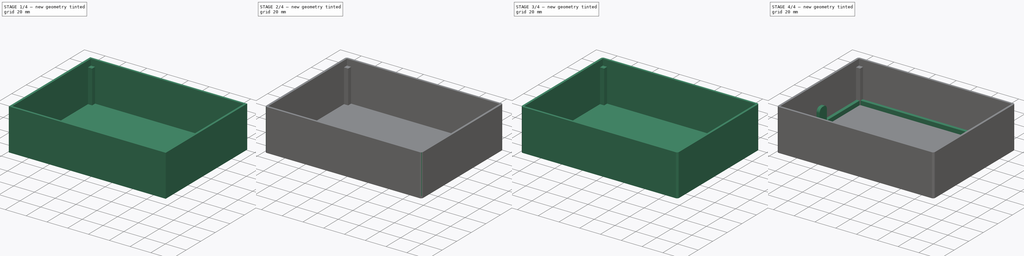
[diagram: build sequence overview — one tinted view per stage of 4, left to right]
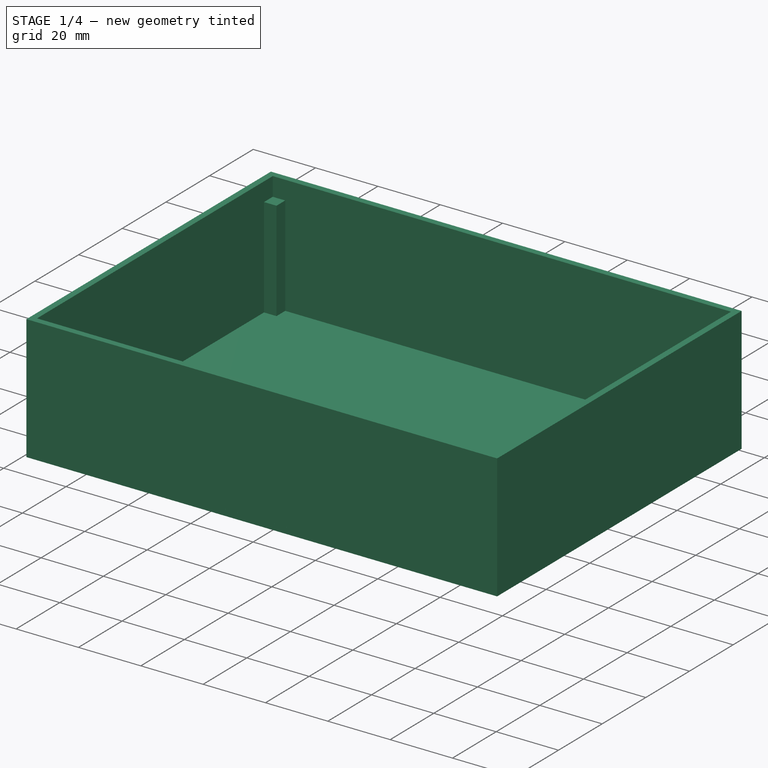
[diagram: stage 1 of 4 — iso view after this stage's code; geometry added in this stage tinted green]
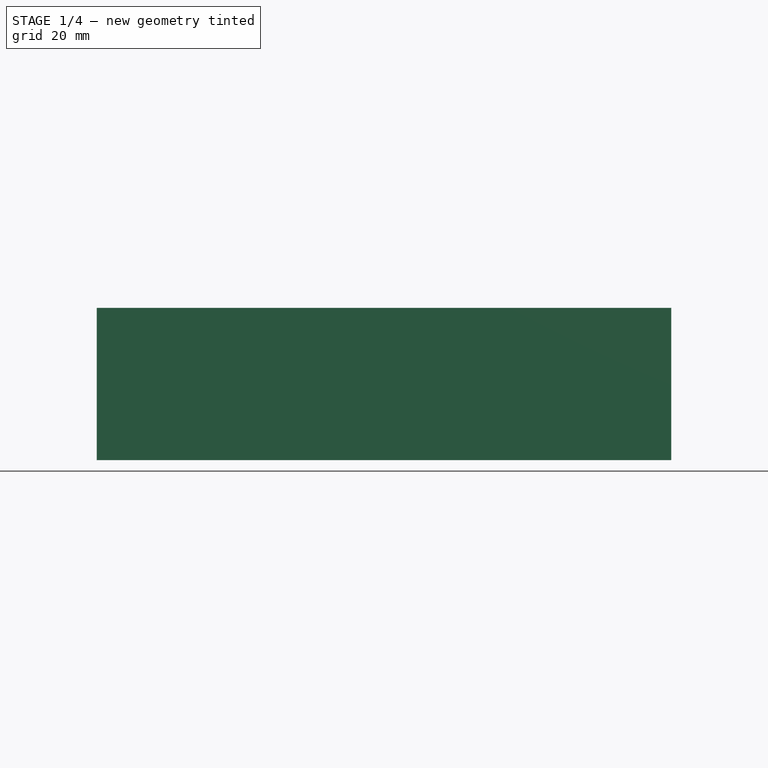
[diagram: stage 1 of 4 — front view after this stage's code; geometry added in this stage tinted green]
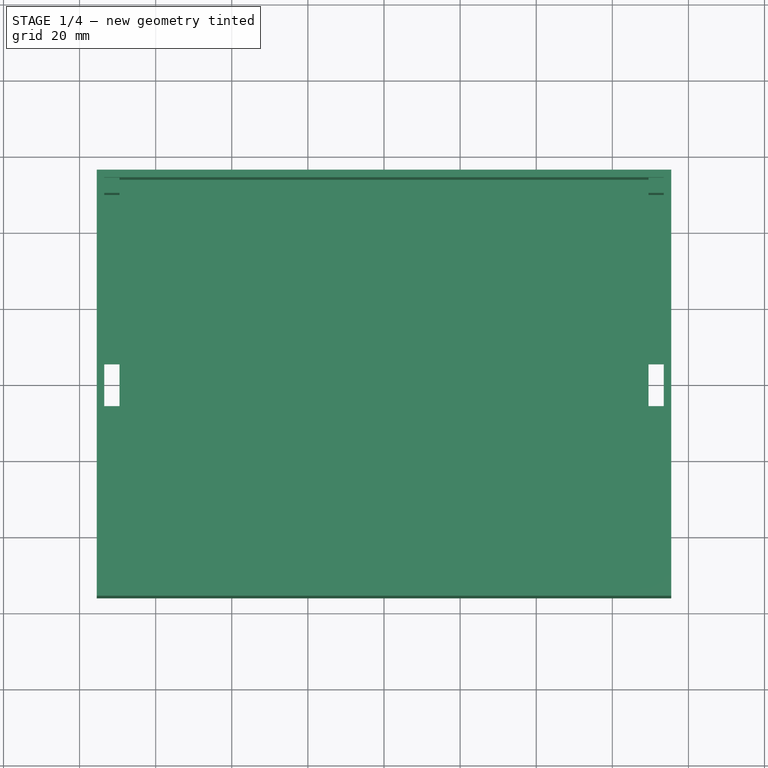
[diagram: stage 1 of 4 — top view after this stage's code; geometry added in this stage tinted green]
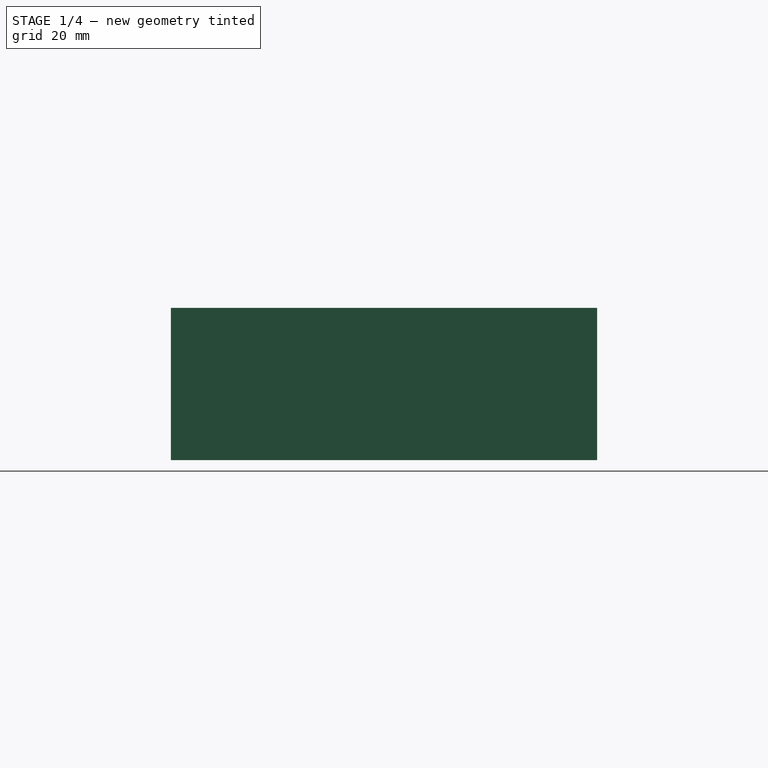
[diagram: stage 1 of 4 — right view after this stage's code; geometry added in this stage tinted green]
FCSTD DOCUMENT  (FreeCAD 0.21R33771 (Git))
Label: rgid
License: All rights reserved
LicenseURL: https://en.wikipedia.org/wiki/All_rights_reserved
objects: Sketcher::SketchObject×9, PartDesign::Pad×8, PartDesign::Fillet×3, PartDesign::Body×3, PartDesign::LinearPattern×1, PartDesign::Mirrored×1, PartDesign::Pocket×1
note: 38 computed .brp shape members not serialized (recipe doc carries the construction recipe); baked Part::Feature solids carry a one-line shape summary decoded from their .brp

FEATURE [PartDesign::Body] Body  label="top"
  Group = -> [Sketch,Pad,Sketch001,Pad001,Sketch002,Pad002,LinearPattern,Sketch003,Pad003,Sketch004,Pad004,Fillet,Mirrored]
  Origin = -> Origin
  Tip = -> Mirrored
FEATURE [Sketcher::SketchObject] Sketch005
  FullyConstrained = true
  MapMode = 5
  Support = -> [XY_Plane001]
  sketch-geometry (16):
    g0: LineSegment StartX=-69.5 StartY=54 StartZ=0 EndX=69.5 EndY=54 EndZ=0
    g1: LineSegment StartX=73.5 StartY=50 StartZ=0 EndX=73.5 EndY=-50 EndZ=0
    g2: LineSegment StartX=69.5 StartY=-54 StartZ=0 EndX=-69.5 EndY=-54 EndZ=0
    g3: LineSegment StartX=-73.5 StartY=-50 StartZ=0 EndX=-73.5 EndY=50 EndZ=0
    g4: LineSegment StartX=-75.5 StartY=56 StartZ=0 EndX=75.5 EndY=56 EndZ=0
    g5: LineSegment StartX=75.5 StartY=56 StartZ=0 EndX=75.5 EndY=-56 EndZ=0
    g6: LineSegment StartX=75.5 StartY=-56 StartZ=0 EndX=-75.5 EndY=-56 EndZ=0
    g7: LineSegment StartX=-75.5 StartY=-56 StartZ=0 EndX=-75.5 EndY=56 EndZ=0
    g8: LineSegment StartX=-69.5 StartY=54 StartZ=0 EndX=-69.5 EndY=50 EndZ=0
    g9: LineSegment StartX=-69.5 StartY=50 StartZ=0 EndX=-73.5 EndY=50 EndZ=0
    g10: LineSegment StartX=69.5 StartY=54 StartZ=0 EndX=69.5 EndY=50 EndZ=0
    g11: LineSegment StartX=69.5 StartY=50 StartZ=0 EndX=73.5 EndY=50 EndZ=0
    g12: LineSegment StartX=69.5 StartY=-54 StartZ=0 EndX=69.5 EndY=-50 EndZ=0
    g13: LineSegment StartX=69.5 StartY=-50 StartZ=0 EndX=73.5 EndY=-50 EndZ=0
    g14: LineSegment StartX=-69.5 StartY=-54 StartZ=0 EndX=-69.5 EndY=-50 EndZ=0
    g15: LineSegment StartX=-69.5 StartY=-50 StartZ=0 EndX=-73.5 EndY=-50 EndZ=0
  constraints (47):
    c: Horizontal(g0)
    c: Horizontal(g2)
    c: Vertical(g1)
    c: Vertical(g3)
    c: Coincident(g4,g5)
    c: Coincident(g5,g6)
    c: Coincident(g6,g7)
    c: Coincident(g7,g4)
    c: Horizontal(g4)
    c: Horizontal(g6)
    c: Vertical(g5)
    c: Vertical(g7)
    c: Coincident(g8,g9)
    c: Horizontal(g9)
    c: Vertical(g8)
    c: DistanceY(g8,g8) = 4
    c: DistanceX(g9,g9) = 4
    c: DistanceY(g0,g4) = 2
    c: DistanceX(g4,g3) = 2
    c: Coincident(g0,g8)
    c: Coincident(g3,g9)
    c: Symmetric(g6,g4,g-1)
    c: DistanceX(g6,g6) = 151
    c: Coincident(g10,g11)
    c: Horizontal(g11)
    c: Vertical(g10)
    c: DistanceY(g10,g10) = 4
    c: DistanceX(g11,g11) = 4
    c: DistanceX(g1,g4) = 2
    c: Coincident(g12,g13)
    c: Horizontal(g13)
    c: Vertical(g12)
    c: DistanceX(g13,g13) = 4
    c: DistanceY(g12,g12) = 4
    c: DistanceY(g5,g2) = 2
    c: Coincident(g14,g15)
    c: Horizontal(g15)
    c: Vertical(g14)
    c: DistanceX(g15,g15) = 4
    c: DistanceY(g14,g14) = 4
    c: Coincident(g2,g14)
    c: Coincident(g2,g12)
    c: Coincident(g0,g10)
    c: Coincident(g1,g11)
    c: Coincident(g1,g13)
    c: Coincident(g3,g15)
    c: DistanceY(g5,g5) = 112
FEATURE [PartDesign::Pad] Pad005
  Direction = (0,0,1)
  Length = 40
  Length2 = 10
  Profile = -> Sketch005
  ReferenceAxis = -> Sketch005 [N_Axis]
  Type = 0
FEATURE [Sketcher::SketchObject] Sketch006
  AttachmentOffset = pos=(0,0,34) rot=(0,0,1;0rad)
  ExternalGeometry = -> [Pad005]
  FullyConstrained = true
  MapMode = 5
  Placement = pos=(0,0,34) rot=(0,0,1;0rad)
  Support = -> [XY_Plane001]
  sketch-geometry (4):
    g0: LineSegment StartX=-73.5 StartY=54 StartZ=0 EndX=73.5 EndY=54 EndZ=0
    g1: LineSegment StartX=73.5 StartY=54 StartZ=0 EndX=73.5 EndY=-54 EndZ=0
    g2: LineSegment StartX=73.5 StartY=-54 StartZ=0 EndX=-73.5 EndY=-54 EndZ=0
    g3: LineSegment StartX=-73.5 StartY=-54 StartZ=0 EndX=-73.5 EndY=54 EndZ=0
  constraints (12):
    c: Coincident(g0,g1)
    c: Coincident(g1,g2)
    c: Coincident(g2,g3)
    c: Coincident(g3,g0)
    c: Horizontal(g0)
    c: Horizontal(g2)
    c: Vertical(g1)
    c: Vertical(g3)
    c: Vertical(g-3,g2)
    c: Vertical(g-4,g1)
    c: Horizontal(g-5,g1)
    c: Horizontal(g-6,g0)
FEATURE [PartDesign::Pocket] Pocket
  BaseFeature = -> Pad005
  Direction = (0,0,-1)
  Length = 6
  Length2 = 5
  Profile = -> Sketch006
  ReferenceAxis = -> Sketch006 [N_Axis]
  Reversed = true
  Type = 0
FEATURE [PartDesign::Body] Body001  label="base"
  Group = -> [Sketch005,Pad005,Sketch006,Pocket,Sketch007,Pad006,Fillet001]
  Origin = -> Origin001
  Placement = pos=(0,0,-34) rot=(0,0,1;0rad)
  Tip = -> Fillet001
FEATURE [Sketcher::SketchObject] Sketch008
  FullyConstrained = true
  MapMode = 5
  Support = -> [XY_Plane002]
  sketch-geometry (12):
    g0: LineSegment StartX=-75.5 StartY=56 StartZ=0 EndX=75.5 EndY=56 EndZ=0
    g1: LineSegment StartX=75.5 StartY=56 StartZ=0 EndX=75.5 EndY=-56 EndZ=0
    g2: LineSegment StartX=75.5 StartY=-56 StartZ=0 EndX=-75.5 EndY=-56 EndZ=0
    g3: LineSegment StartX=-75.5 StartY=-56 StartZ=0 EndX=-75.5 EndY=56 EndZ=0
    g4: LineSegment StartX=-73.5 StartY=5.5 StartZ=0 EndX=-69.5 EndY=5.5 EndZ=0
    g5: LineSegment StartX=-69.5 StartY=5.5 StartZ=0 EndX=-69.5 EndY=-5.5 EndZ=0
    g6: LineSegment StartX=-69.5 StartY=-5.5 StartZ=0 EndX=-73.5 EndY=-5.5 EndZ=0
    g7: LineSegment StartX=-73.5 StartY=-5.5 StartZ=0 EndX=-73.5 EndY=5.5 EndZ=0
    g8: LineSegment StartX=69.5 StartY=5.5 StartZ=0 EndX=73.5 EndY=5.5 EndZ=0
    g9: LineSegment StartX=73.5 StartY=5.5 StartZ=0 EndX=73.5 EndY=-5.5 EndZ=0
    g10: LineSegment StartX=73.5 StartY=-5.5 StartZ=0 EndX=69.5 EndY=-5.5 EndZ=0
    g11: LineSegment StartX=69.5 StartY=-5.5 StartZ=0 EndX=69.5 EndY=5.5 EndZ=0
  constraints (34):
    c: Coincident(g0,g1)
    c: Coincident(g1,g2)
    c: Coincident(g2,g3)
    c: Coincident(g3,g0)
    c: Horizontal(g0)
    c: Horizontal(g2)
    c: Vertical(g1)
    c: Vertical(g3)
    c: DistanceY(g1,g1) = 112
    c: DistanceX(g0,g0) = 151
    c: Symmetric(g2,g0,g-1)
    c: Coincident(g4,g5)
    c: Coincident(g5,g6)
    c: Coincident(g6,g7)
    c: Coincident(g7,g4)
    c: Horizontal(g4)
    c: Horizontal(g6)
    c: Vertical(g5)
    c: Vertical(g7)
    c: Coincident(g8,g9)
    c: Coincident(g9,g10)
    c: Coincident(g10,g11)
    c: Coincident(g11,g8)
    c: Horizontal(g8)
    c: Horizontal(g10)
    c: Vertical(g11)
    c: Horizontal(g5,g10)
    c: Equal(g4,g8)
    c: Equal(g5,g11)
    c: DistanceX(g4,g4) = 4
    c: DistanceY(g5,g5) = 11
    c: DistanceX(g5,g-1) = 69.5
    c: DistanceX(g-1,g10) = 69.5
    c: Symmetric(g8,g9,g-1)
FEATURE [PartDesign::Pad] Pad007
  Direction = (0,0,1)
  Length = 2
  Length2 = 10
  Profile = -> Sketch008
  ReferenceAxis = -> Sketch008 [N_Axis]
  Type = 0
FEATURE [PartDesign::Fillet] Fillet002
  Base = -> Pad007 [Edge2,Edge5,Edge1,Edge8]
  BaseFeature = -> Pad007
  Radius = 2
  SupportTransform = false
  UseAllEdges = false
FEATURE [PartDesign::Body] Body002  label="lid"
  Group = -> [Sketch008,Pad007,Fillet002]
  Origin = -> Origin002
  Placement = pos=(0,0,6) rot=(0,0,1;0rad)
  Tip = -> Fillet002
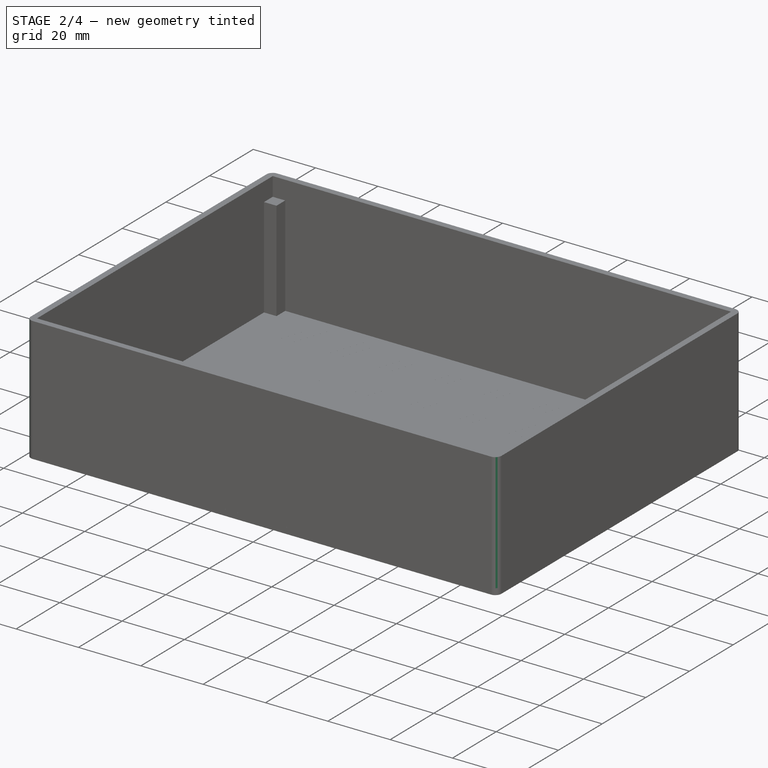
[diagram: stage 2 of 4 — iso view after this stage's code; geometry added in this stage tinted green]
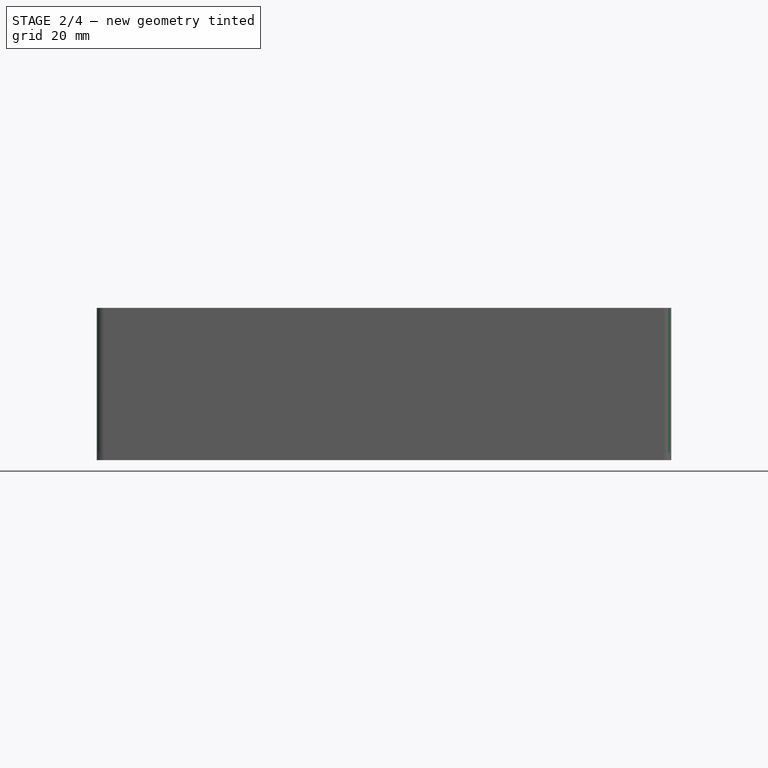
[diagram: stage 2 of 4 — front view after this stage's code; geometry added in this stage tinted green]
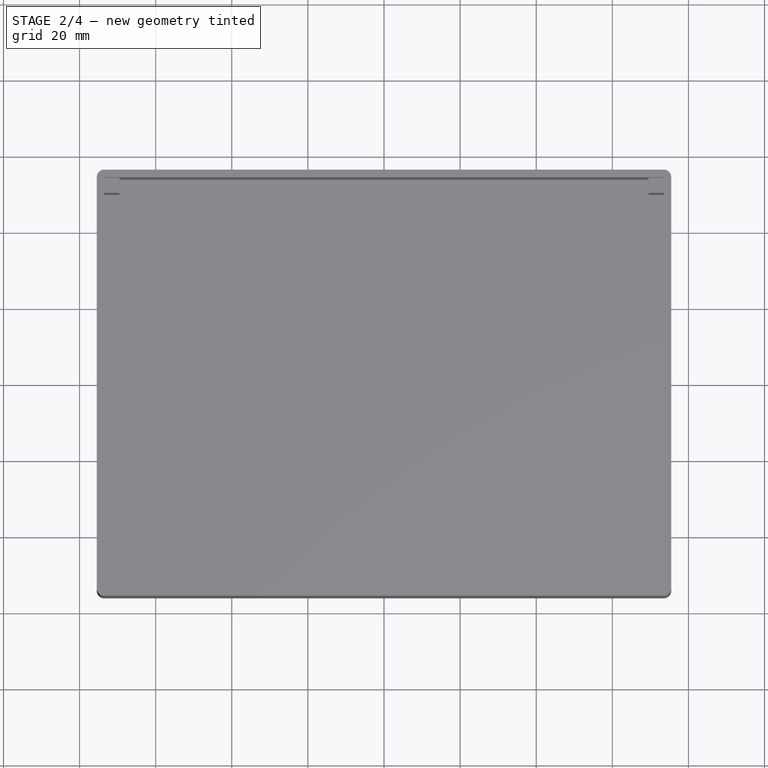
[diagram: stage 2 of 4 — top view after this stage's code; geometry added in this stage tinted green]
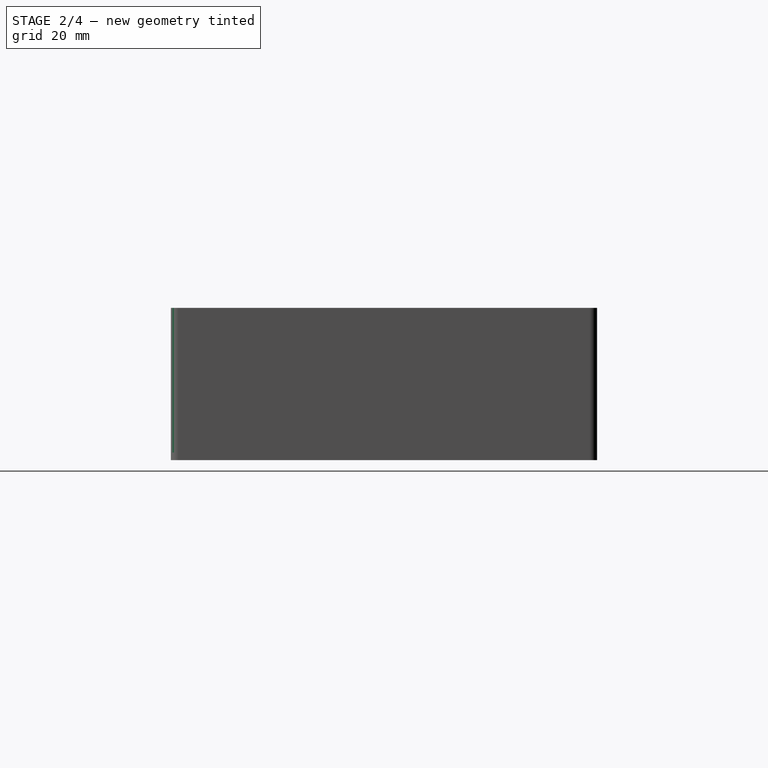
[diagram: stage 2 of 4 — right view after this stage's code; geometry added in this stage tinted green]
FEATURE [Sketcher::SketchObject] Sketch
  FullyConstrained = true
  MapMode = 5
  Support = -> [XY_Plane]
  sketch-geometry (253):
    g0: LineSegment StartX=-70 StartY=50.5 StartZ=0 EndX=70 EndY=50.5 EndZ=0
    g1: LineSegment StartX=70 StartY=50.5 StartZ=0 EndX=70 EndY=-50.5 EndZ=0
    g2: LineSegment StartX=70 StartY=-50.5 StartZ=0 EndX=-70 EndY=-50.5 EndZ=0
    g3: LineSegment StartX=-70 StartY=50.5 StartZ=0 EndX=-70 EndY=-50.5 EndZ=0
    g4: LineSegment StartX=-69 StartY=49.5 StartZ=0 EndX=69 EndY=49.5 EndZ=0
    g5: LineSegment StartX=69 StartY=49.5 StartZ=0 EndX=69 EndY=48.5 EndZ=0
    g6: LineSegment StartX=69 StartY=48.5 StartZ=0 EndX=-69 EndY=48.5 EndZ=0
    g7: LineSegment StartX=-69 StartY=48.5 StartZ=0 EndX=-69 EndY=49.5 EndZ=0
    g8: LineSegment StartX=-69 StartY=46.5015 StartZ=0 EndX=-69 EndY=47.5015 EndZ=0
    g9: LineSegment StartX=69 StartY=46.5015 StartZ=0 EndX=-69 EndY=46.5015 EndZ=0
    g10: LineSegment StartX=-69 StartY=47.5015 StartZ=0 EndX=69 EndY=47.5015 EndZ=0
    g11: LineSegment StartX=69 StartY=47.5015 StartZ=0 EndX=69 EndY=46.5015 EndZ=0
    g12: LineSegment StartX=-69 StartY=48.5 StartZ=0 EndX=-69 EndY=46.5015 EndZ=0
    g13: LineSegment StartX=-69 StartY=44.503 StartZ=0 EndX=-69 EndY=45.503 EndZ=0
    g14: LineSegment StartX=69 StartY=44.503 StartZ=0 EndX=-69 EndY=44.503 EndZ=0
    g15: LineSegment StartX=-69 StartY=45.503 StartZ=0 EndX=69 EndY=45.503 EndZ=0
    g16: LineSegment StartX=69 StartY=45.503 StartZ=0 EndX=69 EndY=44.503 EndZ=0
    g17: LineSegment StartX=-69 StartY=46.5015 StartZ=0 EndX=-69 EndY=44.503 EndZ=0
    g18: LineSegment StartX=-69 StartY=42.5045 StartZ=0 EndX=-69 EndY=43.5045 EndZ=0
    g19: LineSegment StartX=69 StartY=42.5045 StartZ=0 EndX=-69 EndY=42.5045 EndZ=0
    g20: LineSegment StartX=-69 StartY=43.5045 StartZ=0 EndX=69 EndY=43.5045 EndZ=0
    g21: LineSegment StartX=69 StartY=43.5045 StartZ=0 EndX=69 EndY=42.5045 EndZ=0
    g22: LineSegment StartX=-69 StartY=44.503 StartZ=0 EndX=-69 EndY=42.5045 EndZ=0
    g23: LineSegment StartX=-69 StartY=40.506 StartZ=0 EndX=-69 EndY=41.506 EndZ=0
    g24: LineSegment StartX=69 StartY=40.506 StartZ=0 EndX=-69 EndY=40.506 EndZ=0
    g25: LineSegment StartX=-69 StartY=41.506 StartZ=0 EndX=69 EndY=41.506 EndZ=0
    g26: LineSegment StartX=69 StartY=41.506 StartZ=0 EndX=69 EndY=40.506 EndZ=0
    g27: LineSegment StartX=-69 StartY=42.5045 StartZ=0 EndX=-69 EndY=40.506 EndZ=0
    g28: LineSegment StartX=-69 StartY=38.5075 StartZ=0 EndX=-69 EndY=39.5075 EndZ=0
    g29: LineSegment StartX=69 StartY=38.5075 StartZ=0 EndX=-69 EndY=38.5075 EndZ=0
    g30: LineSegment StartX=-69 StartY=39.5075 StartZ=0 EndX=69 EndY=39.5075 EndZ=0
    g31: LineSegment StartX=69 StartY=39.5075 StartZ=0 EndX=69 EndY=38.5075 EndZ=0
    g32: LineSegment StartX=-69 StartY=40.506 StartZ=0 EndX=-69 EndY=38.5075 EndZ=0
    g33: LineSegment StartX=-69 StartY=36.509 StartZ=0 EndX=-69 EndY=37.509 EndZ=0
    g34: LineSegment StartX=69 StartY=36.509 StartZ=0 EndX=-69 EndY=36.509 EndZ=0
    g35: LineSegment StartX=-69 StartY=37.509 StartZ=0 EndX=69 EndY=37.509 EndZ=0
    g36: LineSegment StartX=69 StartY=37.509 StartZ=0 EndX=69 EndY=36.509 EndZ=0
    g37: LineSegment StartX=-69 StartY=38.5075 StartZ=0 EndX=-69 EndY=36.509 EndZ=0
    g38: LineSegment StartX=-69 StartY=34.5105 StartZ=0 EndX=-69 EndY=35.5105 EndZ=0
    g39: LineSegment StartX=69 StartY=34.5105 StartZ=0 EndX=-69 EndY=34.5105 EndZ=0
    g40: LineSegment StartX=-69 StartY=35.5105 StartZ=0 EndX=69 EndY=35.5105 EndZ=0
    g41: LineSegment StartX=69 StartY=35.5105 StartZ=0 EndX=69 EndY=34.5105 EndZ=0
    g42: LineSegment StartX=-69 StartY=36.509 StartZ=0 EndX=-69 EndY=34.5105 EndZ=0
    g43: LineSegment StartX=-69 StartY=32.512 StartZ=0 EndX=-69 EndY=33.512 EndZ=0
    g44: LineSegment StartX=69 StartY=32.512 StartZ=0 EndX=-69 EndY=32.512 EndZ=0
    g45: LineSegment StartX=-69 StartY=33.512 StartZ=0 EndX=69 EndY=33.512 EndZ=0
    g46: LineSegment StartX=69 StartY=33.512 StartZ=0 EndX=69 EndY=32.512 EndZ=0
    g47: LineSegment StartX=-69 StartY=34.5105 StartZ=0 EndX=-69 EndY=32.512 EndZ=0
    g48: LineSegment StartX=-69 StartY=30.5135 StartZ=0 EndX=-69 EndY=31.5135 EndZ=0
    g49: LineSegment StartX=69 StartY=30.5135 StartZ=0 EndX=-69 EndY=30.5135 EndZ=0
    g50: LineSegment StartX=-69 StartY=31.5135 StartZ=0 EndX=69 EndY=31.5135 EndZ=0
    g51: LineSegment StartX=69 StartY=31.5135 StartZ=0 EndX=69 EndY=30.5135 EndZ=0
    g52: LineSegment StartX=-69 StartY=32.512 StartZ=0 EndX=-69 EndY=30.5135 EndZ=0
    g53: LineSegment StartX=-69 StartY=28.515 StartZ=0 EndX=-69 EndY=29.515 EndZ=0
    g54: LineSegment StartX=69 StartY=28.515 StartZ=0 EndX=-69 EndY=28.515 EndZ=0
    g55: LineSegment StartX=-69 StartY=29.515 StartZ=0 EndX=69 EndY=29.515 EndZ=0
    g56: LineSegment StartX=69 StartY=29.515 StartZ=0 EndX=69 EndY=28.515 EndZ=0
    g57: LineSegment StartX=-69 StartY=30.5135 StartZ=0 EndX=-69 EndY=28.515 EndZ=0
    g58: LineSegment StartX=-69 StartY=26.5165 StartZ=0 EndX=-69 EndY=27.5165 EndZ=0
    g59: LineSegment StartX=69 StartY=26.5165 StartZ=0 EndX=-69 EndY=26.5165 EndZ=0
    g60: LineSegment StartX=-69 StartY=27.5165 StartZ=0 EndX=69 EndY=27.5165 EndZ=0
    g61: LineSegment StartX=69 StartY=27.5165 StartZ=0 EndX=69 EndY=26.5165 EndZ=0
    g62: LineSegment StartX=-69 StartY=28.515 StartZ=0 EndX=-69 EndY=26.5165 EndZ=0
    g63: LineSegment StartX=-69 StartY=24.518 StartZ=0 EndX=-69 EndY=25.518 EndZ=0
    g64: LineSegment StartX=69 StartY=24.518 StartZ=0 EndX=-69 EndY=24.518 EndZ=0
    g65: LineSegment StartX=-69 StartY=25.518 StartZ=0 EndX=69 EndY=25.518 EndZ=0
    g66: LineSegment StartX=69 StartY=25.518 StartZ=0 EndX=69 EndY=24.518 EndZ=0
    g67: LineSegment StartX=-69 StartY=26.5165 StartZ=0 EndX=-69 EndY=24.518 EndZ=0
    g68: LineSegment StartX=-69 StartY=22.5195 StartZ=0 EndX=-69 EndY=23.5195 EndZ=0
    g69: LineSegment StartX=69 StartY=22.5195 StartZ=0 EndX=-69 EndY=22.5195 EndZ=0
    g70: LineSegment StartX=-69 StartY=23.5195 StartZ=0 EndX=69 EndY=23.5195 EndZ=0
    g71: LineSegment StartX=69 StartY=23.5195 StartZ=0 EndX=69 EndY=22.5195 EndZ=0
    g72: LineSegment StartX=-69 StartY=24.518 StartZ=0 EndX=-69 EndY=22.5195 EndZ=0
    g73: LineSegment StartX=-69 StartY=20.521 StartZ=0 EndX=-69 EndY=21.521 EndZ=0
    g74: LineSegment StartX=69 StartY=20.521 StartZ=0 EndX=-69 EndY=20.521 EndZ=0
    g75: LineSegment StartX=-69 StartY=21.521 StartZ=0 EndX=69 EndY=21.521 EndZ=0
    g76: LineSegment StartX=69 StartY=21.521 StartZ=0 EndX=69 EndY=20.521 EndZ=0
    g77: LineSegment StartX=-69 StartY=22.5195 StartZ=0 EndX=-69 EndY=20.521 EndZ=0
    g78: LineSegment StartX=-69 StartY=18.5225 StartZ=0 EndX=-69 EndY=19.5225 EndZ=0
    g79: LineSegment StartX=69 StartY=18.5225 StartZ=0 EndX=-69 EndY=18.5225 EndZ=0
    g80: LineSegment StartX=-69 StartY=19.5225 StartZ=0 EndX=69 EndY=19.5225 EndZ=0
    g81: LineSegment StartX=69 StartY=19.5225 StartZ=0 EndX=69 EndY=18.5225 EndZ=0
    g82: LineSegment StartX=-69 StartY=20.521 StartZ=0 EndX=-69 EndY=18.5225 EndZ=0
    g83: LineSegment StartX=-69 StartY=16.524 StartZ=0 EndX=-69 EndY=17.524 EndZ=0
    g84: LineSegment StartX=69 StartY=16.524 StartZ=0 EndX=-69 EndY=16.524 EndZ=0
    g85: LineSegment StartX=-69 StartY=17.524 StartZ=0 EndX=69 EndY=17.524 EndZ=0
    g86: LineSegment StartX=69 StartY=17.524 StartZ=0 EndX=69 EndY=16.524 EndZ=0
    g87: LineSegment StartX=-69 StartY=18.5225 StartZ=0 EndX=-69 EndY=16.524 EndZ=0
    g88: LineSegment StartX=-69 StartY=14.5255 StartZ=0 EndX=-69 EndY=15.5255 EndZ=0
    g89: LineSegment StartX=69 StartY=14.5255 StartZ=0 EndX=-69 EndY=14.5255 EndZ=0
    g90: LineSegment StartX=-69 StartY=15.5255 StartZ=0 EndX=69 EndY=15.5255 EndZ=0
    g91: LineSegment StartX=69 StartY=15.5255 StartZ=0 EndX=69 EndY=14.5255 EndZ=0
    g92: LineSegment StartX=-69 StartY=16.524 StartZ=0 EndX=-69 EndY=14.5255 EndZ=0
    g93: LineSegment StartX=-69 StartY=12.527 StartZ=0 EndX=-69 EndY=13.527 EndZ=0
    g94: LineSegment StartX=69 StartY=12.527 StartZ=0 EndX=-69 EndY=12.527 EndZ=0
    g95: LineSegment StartX=-69 StartY=13.527 StartZ=0 EndX=69 EndY=13.527 EndZ=0
    g96: LineSegment StartX=69 StartY=13.527 StartZ=0 EndX=69 EndY=12.527 EndZ=0
    g97: LineSegment StartX=-69 StartY=14.5255 StartZ=0 EndX=-69 EndY=12.527 EndZ=0
    g98: LineSegment StartX=-69 StartY=10.5285 StartZ=0 EndX=-69 EndY=11.5285 EndZ=0
    g99: LineSegment StartX=69 StartY=10.5285 StartZ=0 EndX=-69 EndY=10.5285 EndZ=0
    g100: LineSegment StartX=-69 StartY=11.5285 StartZ=0 EndX=69 EndY=11.5285 EndZ=0
    g101: LineSegment StartX=69 StartY=11.5285 StartZ=0 EndX=69 EndY=10.5285 EndZ=0
    g102: LineSegment StartX=-69 StartY=12.527 StartZ=0 EndX=-69 EndY=10.5285 EndZ=0
    g103: LineSegment StartX=-69 StartY=8.52997 StartZ=0 EndX=-69 EndY=9.52997 EndZ=0
    g104: LineSegment StartX=69 StartY=8.52997 StartZ=0 EndX=-69 EndY=8.52997 EndZ=0
    g105: LineSegment StartX=-69 StartY=9.52997 StartZ=0 EndX=69 EndY=9.52997 EndZ=0
    g106: LineSegment StartX=69 StartY=9.52997 StartZ=0 EndX=69 EndY=8.52997 EndZ=0
    g107: LineSegment StartX=-69 StartY=10.5285 StartZ=0 EndX=-69 EndY=8.52997 EndZ=0
    g108: LineSegment StartX=-69 StartY=6.53147 StartZ=0 EndX=-69 EndY=7.53147 EndZ=0
    g109: LineSegment StartX=69 StartY=6.53147 StartZ=0 EndX=-69 EndY=6.53147 EndZ=0
    g110: LineSegment StartX=-69 StartY=7.53147 StartZ=0 EndX=69 EndY=7.53147 EndZ=0
    g111: LineSegment StartX=69 StartY=7.53147 StartZ=0 EndX=69 EndY=6.53147 EndZ=0
    g112: LineSegment StartX=-69 StartY=8.52997 StartZ=0 EndX=-69 EndY=6.53147 EndZ=0
    g113: LineSegment StartX=-69 StartY=4.53297 StartZ=0 EndX=-69 EndY=5.53297 EndZ=0
    g114: LineSegment StartX=69 StartY=4.53297 StartZ=0 EndX=-69 EndY=4.53297 EndZ=0
    g115: LineSegment StartX=-69 StartY=5.53297 StartZ=0 EndX=69 EndY=5.53297 EndZ=0
    g116: LineSegment StartX=69 StartY=5.53297 StartZ=0 EndX=69 EndY=4.53297 EndZ=0
    g117: LineSegment StartX=-69 StartY=6.53147 StartZ=0 EndX=-69 EndY=4.53297 EndZ=0
    g118: LineSegment StartX=-69 StartY=2.53447 StartZ=0 EndX=-69 EndY=3.53447 EndZ=0
    g119: LineSegment StartX=69 StartY=2.53447 StartZ=0 EndX=-69 EndY=2.53447 EndZ=0
    g120: LineSegment StartX=-69 StartY=3.53447 StartZ=0 EndX=69 EndY=3.53447 EndZ=0
    g121: LineSegment StartX=69 StartY=3.53447 StartZ=0 EndX=69 EndY=2.53447 EndZ=0
    g122: LineSegment StartX=-69 StartY=4.53297 StartZ=0 EndX=-69 EndY=2.53447 EndZ=0
    g123: LineSegment StartX=-69 StartY=0.535967 StartZ=0 EndX=-69 EndY=1.53597 EndZ=0
    g124: LineSegment StartX=69 StartY=0.535967 StartZ=0 EndX=-69 EndY=0.535967 EndZ=0
    g125: LineSegment StartX=-69 StartY=1.53597 StartZ=0 EndX=69 EndY=1.53597 EndZ=0
    g126: LineSegment StartX=69 StartY=1.53597 StartZ=0 EndX=69 EndY=0.535967 EndZ=0
    g127: LineSegment StartX=-69 StartY=2.53447 StartZ=0 EndX=-69 EndY=0.535967 EndZ=0
    g128: LineSegment StartX=-69 StartY=-1.46253 StartZ=0 EndX=-69 EndY=-0.462534 EndZ=0
    g129: LineSegment StartX=69 StartY=-1.46253 StartZ=0 EndX=-69 EndY=-1.46253 EndZ=0
    g130: LineSegment StartX=-69 StartY=-0.462534 StartZ=0 EndX=69 EndY=-0.462534 EndZ=0
    g131: LineSegment StartX=69 StartY=-0.462534 StartZ=0 EndX=69 EndY=-1.46253 EndZ=0
    g132: LineSegment StartX=-69 StartY=0.535967 StartZ=0 EndX=-69 EndY=-1.46253 EndZ=0
    g133: LineSegment StartX=-69 StartY=-3.46104 StartZ=0 EndX=-69 EndY=-2.46104 EndZ=0
    g134: LineSegment StartX=69 StartY=-3.46104 StartZ=0 EndX=-69 EndY=-3.46104 EndZ=0
    g135: LineSegment StartX=-69 StartY=-2.46104 StartZ=0 EndX=69 EndY=-2.46104 EndZ=0
    g136: LineSegment StartX=69 StartY=-2.46104 StartZ=0 EndX=69 EndY=-3.46104 EndZ=0
    g137: LineSegment StartX=-69 StartY=-1.46253 StartZ=0 EndX=-69 EndY=-3.46104 EndZ=0
    g138: LineSegment StartX=-69 StartY=-5.45954 StartZ=0 EndX=-69 EndY=-4.45954 EndZ=0
    g139: LineSegment StartX=69 StartY=-5.45954 StartZ=0 EndX=-69 EndY=-5.45954 EndZ=0
    g140: LineSegment StartX=-69 StartY=-4.45954 StartZ=0 EndX=69 EndY=-4.45954 EndZ=0
    g141: LineSegment StartX=69 StartY=-4.45954 StartZ=0 EndX=69 EndY=-5.45954 EndZ=0
    g142: LineSegment StartX=-69 StartY=-3.46104 StartZ=0 EndX=-69 EndY=-5.45954 EndZ=0
    g143: LineSegment StartX=-69 StartY=-7.45804 StartZ=0 EndX=-69 EndY=-6.45804 EndZ=0
    g144: LineSegment StartX=69 StartY=-7.45804 StartZ=0 EndX=-69 EndY=-7.45804 EndZ=0
    g145: LineSegment StartX=-69 StartY=-6.45804 StartZ=0 EndX=69 EndY=-6.45804 EndZ=0
    g146: LineSegment StartX=69 StartY=-6.45804 StartZ=0 EndX=69 EndY=-7.45804 EndZ=0
    g147: LineSegment StartX=-69 StartY=-5.45954 StartZ=0 EndX=-69 EndY=-7.45804 EndZ=0
    g148: LineSegment StartX=-69 StartY=-9.45654 StartZ=0 EndX=-69 EndY=-8.45654 EndZ=0
    g149: LineSegment StartX=69 StartY=-9.45654 StartZ=0 EndX=-69 EndY=-9.45654 EndZ=0
    g150: LineSegment StartX=-69 StartY=-8.45654 StartZ=0 EndX=69 EndY=-8.45654 EndZ=0
    g151: LineSegment StartX=69 StartY=-8.45654 StartZ=0 EndX=69 EndY=-9.45654 EndZ=0
    g152: LineSegment StartX=-69 StartY=-7.45804 StartZ=0 EndX=-69 EndY=-9.45654 EndZ=0
    g153: LineSegment StartX=-69 StartY=-11.455 StartZ=0 EndX=-69 EndY=-10.455 EndZ=0
    g154: LineSegment StartX=69 StartY=-11.455 StartZ=0 EndX=-69 EndY=-11.455 EndZ=0
    g155: LineSegment StartX=-69 StartY=-10.455 StartZ=0 EndX=69 EndY=-10.455 EndZ=0
    g156: LineSegment StartX=69 StartY=-10.455 StartZ=0 EndX=69 EndY=-11.455 EndZ=0
    g157: LineSegment StartX=-69 StartY=-9.45654 StartZ=0 EndX=-69 EndY=-11.455 EndZ=0
    g158: LineSegment StartX=-69 StartY=-13.4535 StartZ=0 EndX=-69 EndY=-12.4535 EndZ=0
    g159: LineSegment StartX=69 StartY=-13.4535 StartZ=0 EndX=-69 EndY=-13.4535 EndZ=0
    g160: LineSegment StartX=-69 StartY=-12.4535 StartZ=0 EndX=69 EndY=-12.4535 EndZ=0
    g161: LineSegment StartX=69 StartY=-12.4535 StartZ=0 EndX=69 EndY=-13.4535 EndZ=0
    g162: LineSegment StartX=-69 StartY=-11.455 StartZ=0 EndX=-69 EndY=-13.4535 EndZ=0
    g163: LineSegment StartX=-69 StartY=-15.452 StartZ=0 EndX=-69 EndY=-14.452 EndZ=0
    g164: LineSegment StartX=69 StartY=-15.452 StartZ=0 EndX=-69 EndY=-15.452 EndZ=0
    g165: LineSegment StartX=-69 StartY=-14.452 StartZ=0 EndX=69 EndY=-14.452 EndZ=0
    g166: LineSegment StartX=69 StartY=-14.452 StartZ=0 EndX=69 EndY=-15.452 EndZ=0
    g167: LineSegment StartX=-69 StartY=-13.4535 StartZ=0 EndX=-69 EndY=-15.452 EndZ=0
    g168: LineSegment StartX=-69 StartY=-17.4505 StartZ=0 EndX=-69 EndY=-16.4505 EndZ=0
    g169: LineSegment StartX=69 StartY=-17.4505 StartZ=0 EndX=-69 EndY=-17.4505 EndZ=0
    g170: LineSegment StartX=-69 StartY=-16.4505 StartZ=0 EndX=69 EndY=-16.4505 EndZ=0
    g171: LineSegment StartX=69 StartY=-16.4505 StartZ=0 EndX=69 EndY=-17.4505 EndZ=0
    g172: LineSegment StartX=-69 StartY=-15.452 StartZ=0 EndX=-69 EndY=-17.4505 EndZ=0
    g173: LineSegment StartX=-69 StartY=-19.449 StartZ=0 EndX=-69 EndY=-18.449 EndZ=0
    g174: LineSegment StartX=69 StartY=-19.449 StartZ=0 EndX=-69 EndY=-19.449 EndZ=0
    g175: LineSegment StartX=-69 StartY=-18.449 StartZ=0 EndX=69 EndY=-18.449 EndZ=0
    g176: LineSegment StartX=69 StartY=-18.449 StartZ=0 EndX=69 EndY=-19.449 EndZ=0
    g177: LineSegment StartX=-69 StartY=-17.4505 StartZ=0 EndX=-69 EndY=-19.449 EndZ=0
    g178: LineSegment StartX=-69 StartY=-21.4475 StartZ=0 EndX=-69 EndY=-20.4475 EndZ=0
    g179: LineSegment StartX=69 StartY=-21.4475 StartZ=0 EndX=-69 EndY=-21.4475 EndZ=0
    g180: LineSegment StartX=-69 StartY=-20.4475 StartZ=0 EndX=69 EndY=-20.4475 EndZ=0
    g181: LineSegment StartX=69 StartY=-20.4475 StartZ=0 EndX=69 EndY=-21.4475 EndZ=0
    g182: LineSegment StartX=-69 StartY=-19.449 StartZ=0 EndX=-69 EndY=-21.4475 EndZ=0
    g183: LineSegment StartX=-69 StartY=-23.446 StartZ=0 EndX=-69 EndY=-22.446 EndZ=0
    g184: LineSegment StartX=69 StartY=-23.446 StartZ=0 EndX=-69 EndY=-23.446 EndZ=0
    g185: LineSegment StartX=-69 StartY=-22.446 StartZ=0 EndX=69 EndY=-22.446 EndZ=0
    g186: LineSegment StartX=69 StartY=-22.446 StartZ=0 EndX=69 EndY=-23.446 EndZ=0
    g187: LineSegment StartX=-69 StartY=-21.4475 StartZ=0 EndX=-69 EndY=-23.446 EndZ=0
    g188: LineSegment StartX=-69 StartY=-25.4446 StartZ=0 EndX=-69 EndY=-24.4446 EndZ=0
    g189: LineSegment StartX=69 StartY=-25.4446 StartZ=0 EndX=-69 EndY=-25.4446 EndZ=0
    g190: LineSegment StartX=-69 StartY=-24.4446 StartZ=0 EndX=69 EndY=-24.4446 EndZ=0
    g191: LineSegment StartX=69 StartY=-24.4446 StartZ=0 EndX=69 EndY=-25.4446 EndZ=0
    g192: LineSegment StartX=-69 StartY=-23.446 StartZ=0 EndX=-69 EndY=-25.4446 EndZ=0
    g193: LineSegment StartX=-69 StartY=-27.4431 StartZ=0 EndX=-69 EndY=-26.4431 EndZ=0
    g194: LineSegment StartX=69 StartY=-27.4431 StartZ=0 EndX=-69 EndY=-27.4431 EndZ=0
    g195: LineSegment StartX=-69 StartY=-26.4431 StartZ=0 EndX=69 EndY=-26.4431 EndZ=0
    g196: LineSegment StartX=69 StartY=-26.4431 StartZ=0 EndX=69 EndY=-27.4431 EndZ=0
    g197: LineSegment StartX=-69 StartY=-25.4446 StartZ=0 EndX=-69 EndY=-27.4431 EndZ=0
    g198: LineSegment StartX=-69 StartY=-29.4416 StartZ=0 EndX=-69 EndY=-28.4416 EndZ=0
    g199: LineSegment StartX=69 StartY=-29.4416 StartZ=0 EndX=-69 EndY=-29.4416 EndZ=0
    g200: LineSegment StartX=-69 StartY=-28.4416 StartZ=0 EndX=69 EndY=-28.4416 EndZ=0
    g201: LineSegment StartX=69 StartY=-28.4416 StartZ=0 EndX=69 EndY=-29.4416 EndZ=0
    g202: LineSegment StartX=-69 StartY=-27.4431 StartZ=0 EndX=-69 EndY=-29.4416 EndZ=0
    g203: LineSegment StartX=-69 StartY=-31.4401 StartZ=0 EndX=-69 EndY=-30.4401 EndZ=0
    g204: LineSegment StartX=69 StartY=-31.4401 StartZ=0 EndX=-69 EndY=-31.4401 EndZ=0
    g205: LineSegment StartX=-69 StartY=-30.4401 StartZ=0 EndX=69 EndY=-30.4401 EndZ=0
    g206: LineSegment StartX=69 StartY=-30.4401 StartZ=0 EndX=69 EndY=-31.4401 EndZ=0
    g207: LineSegment StartX=-69 StartY=-29.4416 StartZ=0 EndX=-69 EndY=-31.4401 EndZ=0
    g208: LineSegment StartX=-69 StartY=-33.4386 StartZ=0 EndX=-69 EndY=-32.4386 EndZ=0
    g209: LineSegment StartX=69 StartY=-33.4386 StartZ=0 EndX=-69 EndY=-33.4386 EndZ=0
    g210: LineSegment StartX=-69 StartY=-32.4386 StartZ=0 EndX=69 EndY=-32.4386 EndZ=0
    g211: LineSegment StartX=69 StartY=-32.4386 StartZ=0 EndX=69 EndY=-33.4386 EndZ=0
    g212: LineSegment StartX=-69 StartY=-31.4401 StartZ=0 EndX=-69 EndY=-33.4386 EndZ=0
    g213: LineSegment StartX=-69 StartY=-35.4371 StartZ=0 EndX=-69 EndY=-34.4371 EndZ=0
    g214: LineSegment StartX=69 StartY=-35.4371 StartZ=0 EndX=-69 EndY=-35.4371 EndZ=0
    g215: LineSegment StartX=-69 StartY=-34.4371 StartZ=0 EndX=69 EndY=-34.4371 EndZ=0
    g216: LineSegment StartX=69 StartY=-34.4371 StartZ=0 EndX=69 EndY=-35.4371 EndZ=0
    g217: LineSegment StartX=-69 StartY=-33.4386 StartZ=0 EndX=-69 EndY=-35.4371 EndZ=0
    g218: LineSegment StartX=-69 StartY=-37.4356 StartZ=0 EndX=-69 EndY=-36.4356 EndZ=0
    g219: LineSegment StartX=69 StartY=-37.4356 StartZ=0 EndX=-69 EndY=-37.4356 EndZ=0
    g220: LineSegment StartX=-69 StartY=-36.4356 StartZ=0 EndX=69 EndY=-36.4356 EndZ=0
    g221: LineSegment StartX=69 StartY=-36.4356 StartZ=0 EndX=69 EndY=-37.4356 EndZ=0
    g222: LineSegment StartX=-69 StartY=-35.4371 StartZ=0 EndX=-69 EndY=-37.4356 EndZ=0
    g223: LineSegment StartX=-69 StartY=-39.4341 StartZ=0 EndX=-69 EndY=-38.4341 EndZ=0
    g224: LineSegment StartX=69 StartY=-39.4341 StartZ=0 EndX=-69 EndY=-39.4341 EndZ=0
    g225: LineSegment StartX=-69 StartY=-38.4341 StartZ=0 EndX=69 EndY=-38.4341 EndZ=0
    g226: LineSegment StartX=69 StartY=-38.4341 StartZ=0 EndX=69 EndY=-39.4341 EndZ=0
    g227: LineSegment StartX=-69 StartY=-37.4356 StartZ=0 EndX=-69 EndY=-39.4341 EndZ=0
    g228: LineSegment StartX=-69 StartY=-41.4326 StartZ=0 EndX=-69 EndY=-40.4326 EndZ=0
    g229: LineSegment StartX=69 StartY=-41.4326 StartZ=0 EndX=-69 EndY=-41.4326 EndZ=0
    g230: LineSegment StartX=-69 StartY=-40.4326 StartZ=0 EndX=69 EndY=-40.4326 EndZ=0
    g231: LineSegment StartX=69 StartY=-40.4326 StartZ=0 EndX=69 EndY=-41.4326 EndZ=0
    g232: LineSegment StartX=-69 StartY=-39.4341 StartZ=0 EndX=-69 EndY=-41.4326 EndZ=0
    g233: LineSegment StartX=-69 StartY=-43.4311 StartZ=0 EndX=-69 EndY=-42.4311 EndZ=0
    g234: LineSegment StartX=69 StartY=-43.4311 StartZ=0 EndX=-69 EndY=-43.4311 EndZ=0
    g235: LineSegment StartX=-69 StartY=-42.4311 StartZ=0 EndX=69 EndY=-42.4311 EndZ=0
    g236: LineSegment StartX=69 StartY=-42.4311 StartZ=0 EndX=69 EndY=-43.4311 EndZ=0
    g237: LineSegment StartX=-69 StartY=-41.4326 StartZ=0 EndX=-69 EndY=-43.4311 EndZ=0
    g238: LineSegment StartX=-69 StartY=-45.4296 StartZ=0 EndX=-69 EndY=-44.4296 EndZ=0
    g239: LineSegment StartX=69 StartY=-45.4296 StartZ=0 EndX=-69 EndY=-45.4296 EndZ=0
    g240: LineSegment StartX=-69 StartY=-44.4296 StartZ=0 EndX=69 EndY=-44.4296 EndZ=0
    g241: LineSegment StartX=69 StartY=-44.4296 StartZ=0 EndX=69 EndY=-45.4296 EndZ=0
    g242: LineSegment StartX=-69 StartY=-43.4311 StartZ=0 EndX=-69 EndY=-45.4296 EndZ=0
    g243: LineSegment StartX=-69 StartY=-47.4281 StartZ=0 EndX=-69 EndY=-46.4281 EndZ=0
    g244: LineSegment StartX=69 StartY=-47.4281 StartZ=0 EndX=-69 EndY=-47.4281 EndZ=0
    g245: LineSegment StartX=-69 StartY=-46.4281 StartZ=0 EndX=69 EndY=-46.4281 EndZ=0
    g246: LineSegment StartX=69 StartY=-46.4281 StartZ=0 EndX=69 EndY=-47.4281 EndZ=0
    g247: LineSegment StartX=-69 StartY=-45.4296 StartZ=0 EndX=-69 EndY=-47.4281 EndZ=0
    g248: LineSegment StartX=-69 StartY=-49.4266 StartZ=0 EndX=-69 EndY=-48.4266 EndZ=0
    g249: LineSegment StartX=69 StartY=-49.4266 StartZ=0 EndX=-69 EndY=-49.4266 EndZ=0
    g250: LineSegment StartX=-69 StartY=-48.4266 StartZ=0 EndX=69 EndY=-48.4266 EndZ=0
    g251: LineSegment StartX=69 StartY=-48.4266 StartZ=0 EndX=69 EndY=-49.4266 EndZ=0
    g252: LineSegment StartX=-69 StartY=-47.4281 StartZ=0 EndX=-69 EndY=-49.4266 EndZ=0
  constraints (709):
    c: Coincident(g0,g1)
    c: Coincident(g1,g2)
    c: Horizontal(g0)
    c: Horizontal(g2)
    c: Vertical(g1)
    c: DistanceY(g1,g1) = 101
    c: DistanceX(g2,g2) = 140
    c: Symmetric(g2,g0,g-1)
    c: Coincident(g3,g2)
    c: Vertical(g3)
    c: Coincident(g0,g3)
    c: Coincident(g4,g5)
    c: Coincident(g5,g6)
    c: Coincident(g6,g7)
    c: Coincident(g7,g4)
    c: Horizontal(g4)
    c: Horizontal(g6)
    c: Vertical(g5)
    c: Vertical(g7)
    c: DistanceY(g7,g7) = 1
    c: DistanceX(g4,g4) = 138
    c: DistanceY(g4,g0) = 1
    c: DistanceX(g5,g0) = 1
    c: Coincident(g10,g11)
    c: Coincident(g11,g9)
    c: Coincident(g9,g8)
    c: Coincident(g8,g10)
    c: Horizontal(g10)
    c: Horizontal(g9)
    c: Vertical(g11)
    c: Vertical(g8)
    c: DistanceY(g8,g8) = 1
    c: DistanceX(g10,g10) = 138
    c: Coincident(g7,g12)
    c: Coincident(g8,g12)
    c: Distance(g12) = 1.9985
    c: Angle(g12) = -1.5708
    c: Coincident(g15,g16)
    c: Coincident(g16,g14)
    c: Coincident(g14,g13)
    c: Coincident(g13,g15)
    c: Horizontal(g15)
    c: Horizontal(g14)
    c: Vertical(g16)
    c: Vertical(g13)
    c: DistanceY(g13,g13) = 1
    c: DistanceX(g15,g15) = 138
    c: Coincident(g8,g17)
    c: Coincident(g13,g17)
    c: Equal(g12,g17)
    c: Parallel(g17,g12)
    c: Coincident(g20,g21)
    c: Coincident(g21,g19)
    c: Coincident(g19,g18)
    c: Coincident(g18,g20)
    c: Horizontal(g20)
    c: Horizontal(g19)
    c: Vertical(g21)
    c: Vertical(g18)
    c: DistanceY(g18,g18) = 1
    c: DistanceX(g20,g20) = 138
    c: Coincident(g13,g22)
    c: Coincident(g18,g22)
    c: Equal(g12,g22)
    c: Parallel(g22,g12)
    c: Coincident(g25,g26)
    c: Coincident(g26,g24)
    c: Coincident(g24,g23)
    c: Coincident(g23,g25)
    c: Horizontal(g25)
    c: Horizontal(g24)
    c: Vertical(g26)
    c: Vertical(g23)
    c: DistanceY(g23,g23) = 1
    c: DistanceX(g25,g25) = 138
    c: Coincident(g18,g27)
    c: Coincident(g23,g27)
    c: Equal(g12,g27)
    c: Parallel(g27,g12)
    c: Coincident(g30,g31)
    c: Coincident(g31,g29)
    c: Coincident(g29,g28)
    c: Coincident(g28,g30)
    c: Horizontal(g30)
    c: Horizontal(g29)
    c: Vertical(g31)
    c: Vertical(g28)
    c: DistanceY(g28,g28) = 1
    c: DistanceX(g30,g30) = 138
    c: Coincident(g23,g32)
    c: Coincident(g28,g32)
    c: Equal(g12,g32)
    c: Parallel(g32,g12)
    c: Coincident(g35,g36)
    c: Coincident(g36,g34)
    c: Coincident(g34,g33)
    c: Coincident(g33,g35)
    c: Horizontal(g35)
    c: Horizontal(g34)
    c: Vertical(g36)
    c: Vertical(g33)
    c: DistanceY(g33,g33) = 1
    c: DistanceX(g35,g35) = 138
    c: Coincident(g28,g37)
    c: Coincident(g33,g37)
    c: Equal(g12,g37)
    c: Parallel(g37,g12)
    c: Coincident(g40,g41)
    c: Coincident(g41,g39)
    c: Coincident(g39,g38)
    c: Coincident(g38,g40)
    c: Horizontal(g40)
    c: Horizontal(g39)
    c: Vertical(g41)
    c: Vertical(g38)
    c: DistanceY(g38,g38) = 1
    c: DistanceX(g40,g40) = 138
    c: Coincident(g33,g42)
    c: Coincident(g38,g42)
    c: Equal(g12,g42)
    c: Parallel(g42,g12)
    c: Coincident(g45,g46)
    c: Coincident(g46,g44)
    c: Coincident(g44,g43)
    c: Coincident(g43,g45)
    c: Horizontal(g45)
    c: Horizontal(g44)
    c: Vertical(g46)
    c: Vertical(g43)
    c: DistanceY(g43,g43) = 1
    c: DistanceX(g45,g45) = 138
    c: Coincident(g38,g47)
    c: Coincident(g43,g47)
    c: Equal(g12,g47)
    c: Parallel(g47,g12)
    c: Coincident(g50,g51)
    c: Coincident(g51,g49)
    c: Coincident(g49,g48)
    c: Coincident(g48,g50)
    c: Horizontal(g50)
    c: Horizontal(g49)
    c: Vertical(g51)
    c: Vertical(g48)
    c: DistanceY(g48,g48) = 1
    c: DistanceX(g50,g50) = 138
    c: Coincident(g43,g52)
    c: Coincident(g48,g52)
    c: Equal(g12,g52)
    c: Parallel(g52,g12)
    c: Coincident(g55,g56)
    c: Coincident(g56,g54)
    c: Coincident(g54,g53)
    c: Coincident(g53,g55)
    c: Horizontal(g55)
    c: Horizontal(g54)
    c: Vertical(g56)
    c: Vertical(g53)
    c: DistanceY(g53,g53) = 1
    c: DistanceX(g55,g55) = 138
    c: Coincident(g48,g57)
    c: Coincident(g53,g57)
    c: Equal(g12,g57)
    c: Parallel(g57,g12)
    c: Coincident(g60,g61)
    c: Coincident(g61,g59)
    c: Coincident(g59,g58)
    c: Coincident(g58,g60)
    c: Horizontal(g60)
    c: Horizontal(g59)
    c: Vertical(g61)
    c: Vertical(g58)
    c: DistanceY(g58,g58) = 1
    c: DistanceX(g60,g60) = 138
    c: Coincident(g53,g62)
    c: Coincident(g58,g62)
    c: Equal(g12,g62)
    c: Parallel(g62,g12)
    c: Coincident(g65,g66)
    c: Coincident(g66,g64)
    c: Coincident(g64,g63)
    c: Coincident(g63,g65)
    c: Horizontal(g65)
    c: Horizontal(g64)
    c: Vertical(g66)
    c: Vertical(g63)
    c: DistanceY(g63,g63) = 1
    c: DistanceX(g65,g65) = 138
    c: Coincident(g58,g67)
    c: Coincident(g63,g67)
    c: Equal(g12,g67)
    c: Parallel(g67,g12)
    c: Coincident(g70,g71)
    c: Coincident(g71,g69)
    c: Coincident(g69,g68)
    c: Coincident(g68,g70)
    c: Horizontal(g70)
    c: Horizontal(g69)
    c: Vertical(g71)
    c: Vertical(g68)
    c: DistanceY(g68,g68) = 1
    c: DistanceX(g70,g70) = 138
    c: Coincident(g63,g72)
    c: Coincident(g68,g72)
    c: Equal(g12,g72)
    c: Parallel(g72,g12)
    c: Coincident(g75,g76)
    c: Coincident(g76,g74)
    c: Coincident(g74,g73)
    c: Coincident(g73,g75)
    c: Horizontal(g75)
    c: Horizontal(g74)
    c: Vertical(g76)
    c: Vertical(g73)
    c: DistanceY(g73,g73) = 1
    c: DistanceX(g75,g75) = 138
    c: Coincident(g68,g77)
    c: Coincident(g73,g77)
    c: Equal(g12,g77)
    c: Parallel(g77,g12)
    c: Coincident(g80,g81)
    c: Coincident(g81,g79)
    c: Coincident(g79,g78)
    c: Coincident(g78,g80)
    c: Horizontal(g80)
    c: Horizontal(g79)
    c: Vertical(g81)
    c: Vertical(g78)
    c: DistanceY(g78,g78) = 1
    c: DistanceX(g80,g80) = 138
    c: Coincident(g73,g82)
    c: Coincident(g78,g82)
    c: Equal(g12,g82)
    c: Parallel(g82,g12)
    c: Coincident(g85,g86)
    c: Coincident(g86,g84)
    c: Coincident(g84,g83)
    c: Coincident(g83,g85)
    c: Horizontal(g85)
    c: Horizontal(g84)
    c: Vertical(g86)
    c: Vertical(g83)
    c: DistanceY(g83,g83) = 1
    c: DistanceX(g85,g85) = 138
    c: Coincident(g78,g87)
    c: Coincident(g83,g87)
    c: Equal(g12,g87)
    c: Parallel(g87,g12)
    c: Coincident(g90,g91)
    c: Coincident(g91,g89)
    c: Coincident(g89,g88)
    c: Coincident(g88,g90)
    c: Horizontal(g90)
    c: Horizontal(g89)
    c: Vertical(g91)
    c: Vertical(g88)
    c: DistanceY(g88,g88) = 1
    c: DistanceX(g90,g90) = 138
    c: Coincident(g83,g92)
    c: Coincident(g88,g92)
    c: Equal(g12,g92)
    c: Parallel(g92,g12)
    c: Coincident(g95,g96)
    c: Coincident(g96,g94)
    c: Coincident(g94,g93)
    c: Coincident(g93,g95)
    c: Horizontal(g95)
    c: Horizontal(g94)
    c: Vertical(g96)
    c: Vertical(g93)
    c: DistanceY(g93,g93) = 1
    c: DistanceX(g95,g95) = 138
    c: Coincident(g88,g97)
    c: Coincident(g93,g97)
    c: Equal(g12,g97)
    c: Parallel(g97,g12)
    c: Coincident(g100,g101)
    c: Coincident(g101,g99)
    c: Coincident(g99,g98)
    c: Coincident(g98,g100)
    c: Horizontal(g100)
    c: Horizontal(g99)
    c: Vertical(g101)
    c: Vertical(g98)
    c: DistanceY(g98,g98) = 1
    c: DistanceX(g100,g100) = 138
    c: Coincident(g93,g102)
    c: Coincident(g98,g102)
    c: Equal(g12,g102)
    c: Parallel(g102,g12)
    c: Coincident(g105,g106)
    c: Coincident(g106,g104)
    c: Coincident(g104,g103)
    c: Coincident(g103,g105)
    c: Horizontal(g105)
    c: Horizontal(g104)
    c: Vertical(g106)
    c: Vertical(g103)
    c: DistanceY(g103,g103) = 1
    c: DistanceX(g105,g105) = 138
    c: Coincident(g98,g107)
    c: Coincident(g103,g107)
    c: Equal(g12,g107)
    c: Parallel(g107,g12)
    c: Coincident(g110,g111)
    c: Coincident(g111,g109)
    c: Coincident(g109,g108)
    c: Coincident(g108,g110)
    c: Horizontal(g110)
    c: Horizontal(g109)
    c: Vertical(g111)
    c: Vertical(g108)
    c: DistanceY(g108,g108) = 1
    c: DistanceX(g110,g110) = 138
    c: Coincident(g103,g112)
    c: Coincident(g108,g112)
    c: Equal(g12,g112)
    c: Parallel(g112,g12)
    c: Coincident(g115,g116)
    c: Coincident(g116,g114)
    c: Coincident(g114,g113)
    c: Coincident(g113,g115)
    c: Horizontal(g115)
    c: Horizontal(g114)
    c: Vertical(g116)
    c: Vertical(g113)
    c: DistanceY(g113,g113) = 1
    c: DistanceX(g115,g115) = 138
    c: Coincident(g108,g117)
    c: Coincident(g113,g117)
    c: Equal(g12,g117)
    c: Parallel(g117,g12)
    c: Coincident(g120,g121)
    c: Coincident(g121,g119)
    c: Coincident(g119,g118)
    c: Coincident(g118,g120)
    c: Horizontal(g120)
    c: Horizontal(g119)
    c: Vertical(g121)
    c: Vertical(g118)
    c: DistanceY(g118,g118) = 1
    c: DistanceX(g120,g120) = 138
    c: Coincident(g113,g122)
    c: Coincident(g118,g122)
    c: Equal(g12,g122)
    c: Parallel(g122,g12)
    c: Coincident(g125,g126)
    c: Coincident(g126,g124)
    c: Coincident(g124,g123)
    c: Coincident(g123,g125)
    c: Horizontal(g125)
    c: Horizontal(g124)
    c: Vertical(g126)
    c: Vertical(g123)
    c: DistanceY(g123,g123) = 1
    c: DistanceX(g125,g125) = 138
    c: Coincident(g118,g127)
    c: Coincident(g123,g127)
    c: Equal(g12,g127)
    c: Parallel(g127,g12)
    c: Coincident(g130,g131)
    c: Coincident(g131,g129)
    c: Coincident(g129,g128)
    c: Coincident(g128,g130)
    c: Horizontal(g130)
    c: Horizontal(g129)
    c: Vertical(g131)
    c: Vertical(g128)
    c: DistanceY(g128,g128) = 1
    c: DistanceX(g130,g130) = 138
    c: Coincident(g123,g132)
    c: Coincident(g128,g132)
    c: Equal(g12,g132)
    c: Parallel(g132,g12)
    c: Coincident(g135,g136)
    c: Coincident(g136,g134)
    c: Coincident(g134,g133)
    c: Coincident(g133,g135)
    c: Horizontal(g135)
    c: Horizontal(g134)
    c: Vertical(g136)
    c: Vertical(g133)
    c: DistanceY(g133,g133) = 1
    c: DistanceX(g135,g135) = 138
    c: Coincident(g128,g137)
    c: Coincident(g133,g137)
    c: Equal(g12,g137)
    c: Parallel(g137,g12)
    c: Coincident(g140,g141)
    c: Coincident(g141,g139)
    c: Coincident(g139,g138)
    c: Coincident(g138,g140)
    c: Horizontal(g140)
    c: Horizontal(g139)
    c: Vertical(g141)
    c: Vertical(g138)
    c: DistanceY(g138,g138) = 1
    c: DistanceX(g140,g140) = 138
    c: Coincident(g133,g142)
    c: Coincident(g138,g142)
    c: Equal(g12,g142)
    c: Parallel(g142,g12)
    c: Coincident(g145,g146)
    c: Coincident(g146,g144)
    c: Coincident(g144,g143)
    c: Coincident(g143,g145)
    c: Horizontal(g145)
    c: Horizontal(g144)
    c: Vertical(g146)
    c: Vertical(g143)
    c: DistanceY(g143,g143) = 1
    c: DistanceX(g145,g145) = 138
    c: Coincident(g138,g147)
    c: Coincident(g143,g147)
    c: Equal(g12,g147)
    c: Parallel(g147,g12)
    c: Coincident(g150,g151)
    c: Coincident(g151,g149)
    c: Coincident(g149,g148)
    c: Coincident(g148,g150)
    c: Horizontal(g150)
    c: Horizontal(g149)
    c: Vertical(g151)
    c: Vertical(g148)
    c: DistanceY(g148,g148) = 1
    c: DistanceX(g150,g150) = 138
    c: Coincident(g143,g152)
    c: Coincident(g148,g152)
    c: Equal(g12,g152)
    c: Parallel(g152,g12)
    c: Coincident(g155,g156)
    c: Coincident(g156,g154)
    c: Coincident(g154,g153)
    c: Coincident(g153,g155)
    c: Horizontal(g155)
    c: Horizontal(g154)
    c: Vertical(g156)
    c: Vertical(g153)
    c: DistanceY(g153,g153) = 1
    c: DistanceX(g155,g155) = 138
    c: Coincident(g148,g157)
    c: Coincident(g153,g157)
    c: Equal(g12,g157)
    c: Parallel(g157,g12)
    c: Coincident(g160,g161)
    c: Coincident(g161,g159)
    c: Coincident(g159,g158)
    c: Coincident(g158,g160)
    c: Horizontal(g160)
    c: Horizontal(g159)
    c: Vertical(g161)
    c: Vertical(g158)
    c: DistanceY(g158,g158) = 1
    c: DistanceX(g160,g160) = 138
    c: Coincident(g153,g162)
    c: Coincident(g158,g162)
    c: Equal(g12,g162)
    c: Parallel(g162,g12)
    c: Coincident(g165,g166)
    c: Coincident(g166,g164)
    c: Coincident(g164,g163)
    c: Coincident(g163,g165)
    c: Horizontal(g165)
    c: Horizontal(g164)
    c: Vertical(g166)
    c: Vertical(g163)
    c: DistanceY(g163,g163) = 1
    c: DistanceX(g165,g165) = 138
    c: Coincident(g158,g167)
    c: Coincident(g163,g167)
    c: Equal(g12,g167)
    c: Parallel(g167,g12)
    c: Coincident(g170,g171)
    c: Coincident(g171,g169)
    c: Coincident(g169,g168)
    c: Coincident(g168,g170)
    c: Horizontal(g170)
    c: Horizontal(g169)
    c: Vertical(g171)
    c: Vertical(g168)
    c: DistanceY(g168,g168) = 1
    c: DistanceX(g170,g170) = 138
    c: Coincident(g163,g172)
    c: Coincident(g168,g172)
    c: Equal(g12,g172)
    c: Parallel(g172,g12)
    c: Coincident(g175,g176)
    c: Coincident(g176,g174)
    c: Coincident(g174,g173)
    c: Coincident(g173,g175)
    c: Horizontal(g175)
    c: Horizontal(g174)
    c: Vertical(g176)
    c: Vertical(g173)
    c: DistanceY(g173,g173) = 1
    c: DistanceX(g175,g175) = 138
    c: Coincident(g168,g177)
    c: Coincident(g173,g177)
    c: Equal(g12,g177)
    c: Parallel(g177,g12)
    c: Coincident(g180,g181)
    c: Coincident(g181,g179)
    c: Coincident(g179,g178)
    c: Coincident(g178,g180)
    c: Horizontal(g180)
    c: Horizontal(g179)
    c: Vertical(g181)
    c: Vertical(g178)
    c: DistanceY(g178,g178) = 1
    c: DistanceX(g180,g180) = 138
    c: Coincident(g173,g182)
    c: Coincident(g178,g182)
    c: Equal(g12,g182)
    c: Parallel(g182,g12)
    c: Coincident(g185,g186)
    c: Coincident(g186,g184)
    c: Coincident(g184,g183)
    c: Coincident(g183,g185)
    c: Horizontal(g185)
    c: Horizontal(g184)
    c: Vertical(g186)
    c: Vertical(g183)
    c: DistanceY(g183,g183) = 1
    c: DistanceX(g185,g185) = 138
    c: Coincident(g178,g187)
    c: Coincident(g183,g187)
    c: Equal(g12,g187)
    c: Parallel(g187,g12)
    c: Coincident(g190,g191)
    c: Coincident(g191,g189)
    c: Coincident(g189,g188)
    c: Coincident(g188,g190)
    c: Horizontal(g190)
    c: Horizontal(g189)
    c: Vertical(g191)
    c: Vertical(g188)
    c: DistanceY(g188,g188) = 1
    c: DistanceX(g190,g190) = 138
    c: Coincident(g183,g192)
    c: Coincident(g188,g192)
    c: Equal(g12,g192)
    c: Parallel(g192,g12)
    c: Coincident(g195,g196)
    c: Coincident(g196,g194)
    c: Coincident(g194,g193)
    c: Coincident(g193,g195)
    c: Horizontal(g195)
    c: Horizontal(g194)
    c: Vertical(g196)
    c: Vertical(g193)
    c: DistanceY(g193,g193) = 1
    c: DistanceX(g195,g195) = 138
    c: Coincident(g188,g197)
    c: Coincident(g193,g197)
    c: Equal(g12,g197)
    c: Parallel(g197,g12)
    c: Coincident(g200,g201)
    c: Coincident(g201,g199)
    c: Coincident(g199,g198)
    c: Coincident(g198,g200)
    c: Horizontal(g200)
    c: Horizontal(g199)
    c: Vertical(g201)
    c: Vertical(g198)
    c: DistanceY(g198,g198) = 1
    c: DistanceX(g200,g200) = 138
    c: Coincident(g193,g202)
    c: Coincident(g198,g202)
    c: Equal(g12,g202)
    c: Parallel(g202,g12)
    c: Coincident(g205,g206)
    c: Coincident(g206,g204)
    c: Coincident(g204,g203)
    c: Coincident(g203,g205)
    c: Horizontal(g205)
    c: Horizontal(g204)
    c: Vertical(g206)
    c: Vertical(g203)
    c: DistanceY(g203,g203) = 1
    c: DistanceX(g205,g205) = 138
    c: Coincident(g198,g207)
    c: Coincident(g203,g207)
    c: Equal(g12,g207)
    c: Parallel(g207,g12)
    c: Coincident(g210,g211)
    c: Coincident(g211,g209)
    c: Coincident(g209,g208)
    c: Coincident(g208,g210)
    c: Horizontal(g210)
    c: Horizontal(g209)
    c: Vertical(g211)
    c: Vertical(g208)
    c: DistanceY(g208,g208) = 1
    c: DistanceX(g210,g210) = 138
    c: Coincident(g203,g212)
    c: Coincident(g208,g212)
    c: Equal(g12,g212)
    c: Parallel(g212,g12)
    c: Coincident(g215,g216)
    c: Coincident(g216,g214)
    c: Coincident(g214,g213)
    c: Coincident(g213,g215)
    c: Horizontal(g215)
    c: Horizontal(g214)
    c: Vertical(g216)
    c: Vertical(g213)
    c: DistanceY(g213,g213) = 1
    c: DistanceX(g215,g215) = 138
    c: Coincident(g208,g217)
    c: Coincident(g213,g217)
    c: Equal(g12,g217)
    c: Parallel(g217,g12)
    c: Coincident(g220,g221)
    c: Coincident(g221,g219)
    c: Coincident(g219,g218)
    c: Coincident(g218,g220)
    c: Horizontal(g220)
    c: Horizontal(g219)
    c: Vertical(g221)
    c: Vertical(g218)
    c: DistanceY(g218,g218) = 1
    c: DistanceX(g220,g220) = 138
    c: Coincident(g213,g222)
    c: Coincident(g218,g222)
    c: Equal(g12,g222)
    c: Parallel(g222,g12)
    c: Coincident(g225,g226)
    c: Coincident(g226,g224)
    c: Coincident(g224,g223)
    c: Coincident(g223,g225)
    c: Horizontal(g225)
    c: Horizontal(g224)
    c: Vertical(g226)
    c: Vertical(g223)
    c: DistanceY(g223,g223) = 1
    c: DistanceX(g225,g225) = 138
    c: Coincident(g218,g227)
    c: Coincident(g223,g227)
    c: Equal(g12,g227)
    c: Parallel(g227,g12)
    c: Coincident(g230,g231)
    c: Coincident(g231,g229)
    c: Coincident(g229,g228)
    c: Coincident(g228,g230)
    c: Horizontal(g230)
    c: Horizontal(g229)
    c: Vertical(g231)
    c: Vertical(g228)
    c: DistanceY(g228,g228) = 1
    c: DistanceX(g230,g230) = 138
    c: Coincident(g223,g232)
    c: Coincident(g228,g232)
    c: Equal(g12,g232)
    c: Parallel(g232,g12)
    c: Coincident(g235,g236)
    c: Coincident(g236,g234)
    c: Coincident(g234,g233)
    c: Coincident(g233,g235)
    c: Horizontal(g235)
    c: Horizontal(g234)
    c: Vertical(g236)
    c: Vertical(g233)
    c: DistanceY(g233,g233) = 1
    c: DistanceX(g235,g235) = 138
    c: Coincident(g228,g237)
    c: Coincident(g233,g237)
    c: Equal(g12,g237)
    c: Parallel(g237,g12)
    c: Coincident(g240,g241)
    c: Coincident(g241,g239)
    c: Coincident(g239,g238)
    c: Coincident(g238,g240)
    c: Horizontal(g240)
    c: Horizontal(g239)
    c: Vertical(g241)
    c: Vertical(g238)
    c: DistanceY(g238,g238) = 1
    c: DistanceX(g240,g240) = 138
    c: Coincident(g233,g242)
    c: Coincident(g238,g242)
    c: Equal(g12,g242)
    c: Parallel(g242,g12)
    c: Coincident(g245,g246)
    c: Coincident(g246,g244)
    c: Coincident(g244,g243)
    c: Coincident(g243,g245)
    c: Horizontal(g245)
    c: Horizontal(g244)
    c: Vertical(g246)
    c: Vertical(g243)
    c: DistanceY(g243,g243) = 1
    c: DistanceX(g245,g245) = 138
    c: Coincident(g238,g247)
    c: Coincident(g243,g247)
    c: Equal(g12,g247)
    c: Parallel(g247,g12)
    c: Coincident(g250,g251)
    c: Coincident(g251,g249)
    c: Coincident(g249,g248)
    c: Coincident(g248,g250)
    c: Horizontal(g250)
    c: Horizontal(g249)
    c: Vertical(g251)
    c: Vertical(g248)
    c: DistanceY(g248,g248) = 1
    c: DistanceX(g250,g250) = 138
    c: Coincident(g243,g252)
    c: Coincident(g248,g252)
    c: Equal(g12,g252)
    c: Parallel(g252,g12)
FEATURE [PartDesign::Pad] Pad
  Direction = (0,0,1)
  Length = 2
  Length2 = 10
  Profile = -> Sketch
  ReferenceAxis = -> Sketch [N_Axis]
  Type = 0
FEATURE [Sketcher::SketchObject] Sketch007
  ExternalGeometry = -> [Pocket]
  FullyConstrained = true
  MapMode = 5
  Support = -> [XY_Plane001]
  sketch-geometry (4):
    g0: LineSegment StartX=-75.5 StartY=56 StartZ=0 EndX=75.5 EndY=56 EndZ=0
    g1: LineSegment StartX=75.5 StartY=56 StartZ=0 EndX=75.5 EndY=-56 EndZ=0
    g2: LineSegment StartX=75.5 StartY=-56 StartZ=0 EndX=-75.5 EndY=-56 EndZ=0
    g3: LineSegment StartX=-75.5 StartY=-56 StartZ=0 EndX=-75.5 EndY=56 EndZ=0
  constraints (10):
    c: Coincident(g0,g1)
    c: Coincident(g1,g2)
    c: Coincident(g2,g3)
    c: Coincident(g3,g0)
    c: Horizontal(g0)
    c: Horizontal(g2)
    c: Vertical(g1)
    c: Vertical(g3)
    c: Coincident(g0,g-3)
    c: Coincident(g1,g-4)
FEATURE [PartDesign::Pad] Pad006
  BaseFeature = -> Pocket
  Direction = (0,0,1)
  Length = 2
  Length2 = 10
  Profile = -> Sketch007
  ReferenceAxis = -> Sketch007 [N_Axis]
  Type = 0
FEATURE [PartDesign::Fillet] Fillet001
  Base = -> Pad006 [Edge44,Edge28,Edge24,Edge22]
  BaseFeature = -> Pad006
  Radius = 2
  SupportTransform = false
  UseAllEdges = false
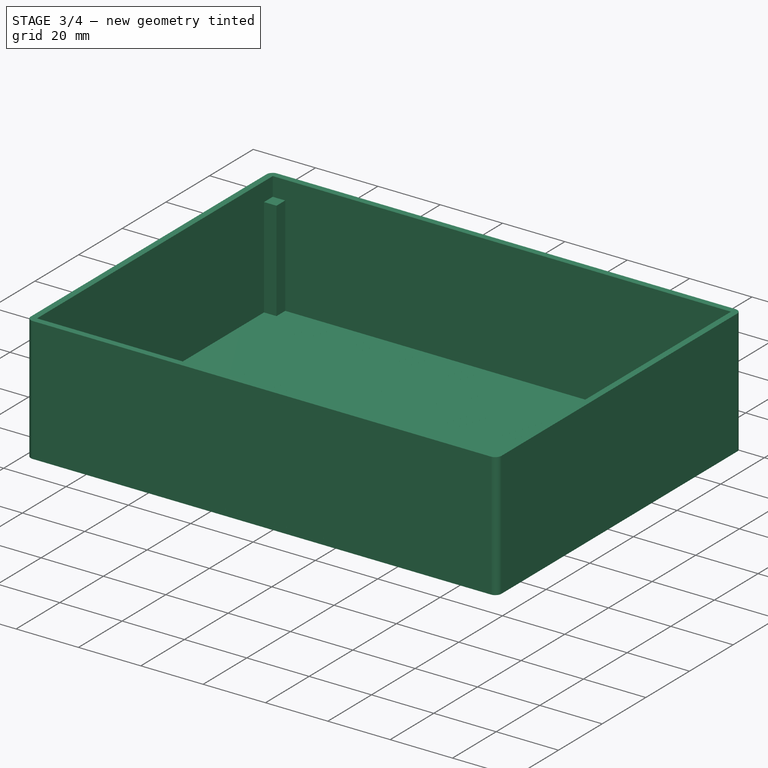
[diagram: stage 3 of 4 — iso view after this stage's code; geometry added in this stage tinted green]
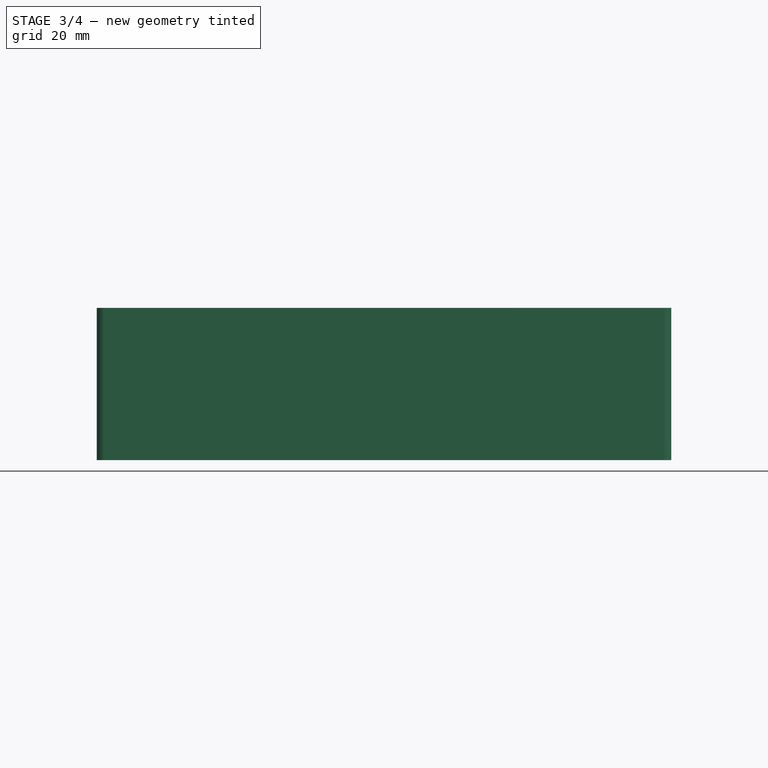
[diagram: stage 3 of 4 — front view after this stage's code; geometry added in this stage tinted green]
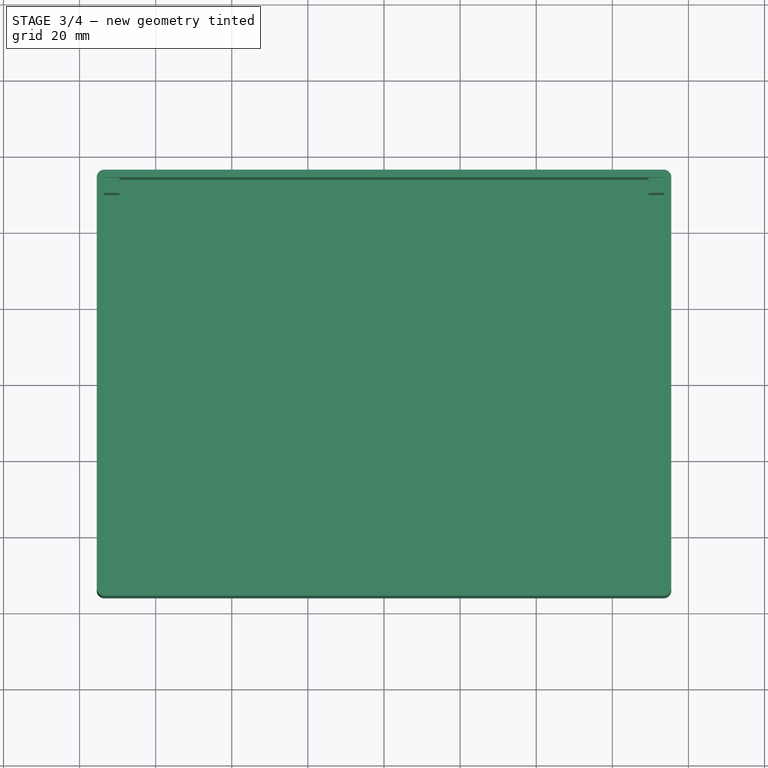
[diagram: stage 3 of 4 — top view after this stage's code; geometry added in this stage tinted green]
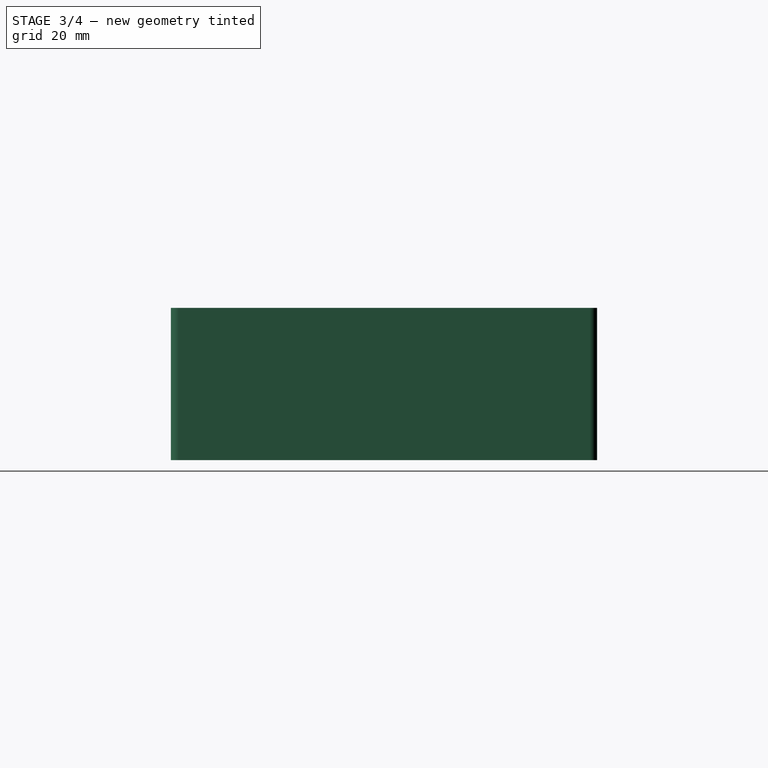
[diagram: stage 3 of 4 — right view after this stage's code; geometry added in this stage tinted green]
FEATURE [Sketcher::SketchObject] Sketch001
  ExternalGeometry = -> [Pad]
  FullyConstrained = false
  MapMode = 5
  Support = -> [XY_Plane]
  sketch-geometry (8):
    g0: LineSegment StartX=-70 StartY=50.5 StartZ=0 EndX=-70 EndY=-50.5 EndZ=0
    g1: LineSegment StartX=-70 StartY=-50.5 StartZ=0 EndX=70 EndY=-50.5 EndZ=0
    g2: LineSegment StartX=70 StartY=-50.5 StartZ=0 EndX=70 EndY=50.5 EndZ=0
    g3: LineSegment StartX=70 StartY=50.5 StartZ=0 EndX=-70 EndY=50.5 EndZ=0
    g4: LineSegment StartX=-69 StartY=49.5 StartZ=0 EndX=-69 EndY=-49.5 EndZ=0
    g5: LineSegment StartX=-69 StartY=-49.5 StartZ=0 EndX=69 EndY=-49.5 EndZ=0
    g6: LineSegment StartX=69 StartY=-49.5 StartZ=0 EndX=69 EndY=49.5 EndZ=0
    g7: LineSegment StartX=69 StartY=49.5 StartZ=0 EndX=-69 EndY=49.5 EndZ=0
  constraints (23):
    c: PointOnObject(g3,g-3)
    c: PointOnObject(g0,g-4)
    c: PointOnObject(g0,g-4)
    c: PointOnObject(g1,g-6)
    c: PointOnObject(g2,g-5)
    c: PointOnObject(g2,g-5)
    c: PointOnObject(g3,g-3)
    c: Vertical(g4)
    c: Horizontal(g5)
    c: Vertical(g6)
    c: Horizontal(g7)
    c: DistanceX(g0,g4) = 1
    c: DistanceY(g1,g5) = 1
    c: DistanceY(g7,g3) = 1
    c: Coincident(g4,g5)
    c: Coincident(g0,g1)
    c: Coincident(g5,g6)
    c: Coincident(g1,g2)
    c: DistanceX(g6,g2) = 1
    c: Coincident(g6,g7)
    c: Coincident(g2,g3)
    c: Coincident(g3,g0)
    c: Coincident(g4,g7)
FEATURE [PartDesign::Pad] Pad001
  BaseFeature = -> Pad
  Direction = (0,0,1)
  Length = 2
  Length2 = 10
  Profile = -> Sketch001
  ReferenceAxis = -> Sketch001 [N_Axis]
  Type = 0
FEATURE [Sketcher::SketchObject] Sketch002
  ExternalGeometry = -> [Pad001,Sketch001]
  FullyConstrained = false
  MapMode = 5
  Support = -> [XY_Plane]
  sketch-geometry (4):
    g0: LineSegment StartX=-40.4142 StartY=49.5 StartZ=0 EndX=-38.9018 EndY=49.5 EndZ=0
    g1: LineSegment StartX=-38.9018 StartY=49.5 StartZ=0 EndX=-38.9018 EndY=-49.5 EndZ=0
    g2: LineSegment StartX=-38.9018 StartY=-49.5 StartZ=0 EndX=-40.4142 EndY=-49.5 EndZ=0
    g3: LineSegment StartX=-40.4142 StartY=-49.5 StartZ=0 EndX=-40.4142 EndY=49.5 EndZ=0
  constraints (11):
    c: Coincident(g0,g1)
    c: Coincident(g1,g2)
    c: Coincident(g2,g3)
    c: Coincident(g3,g0)
    c: Horizontal(g0)
    c: Horizontal(g2)
    c: Vertical(g1)
    c: Vertical(g3)
    c: PointOnObject(g0,g-3)
    c: PointOnObject(g1,g-4)
    c: DistanceX(g-3,g-3) = 138
FEATURE [PartDesign::Pad] Pad002
  BaseFeature = -> Pad001
  Direction = (0,0,1)
  Length = 2
  Length2 = 10
  Profile = -> Sketch002
  ReferenceAxis = -> Sketch002 [N_Axis]
  Type = 0
FEATURE [PartDesign::LinearPattern] LinearPattern
  BaseFeature = -> Pad002
  Direction = -> Sketch002 [H_Axis]
  Length = 80
  Occurrences = 3
  Originals = -> [Pad002]
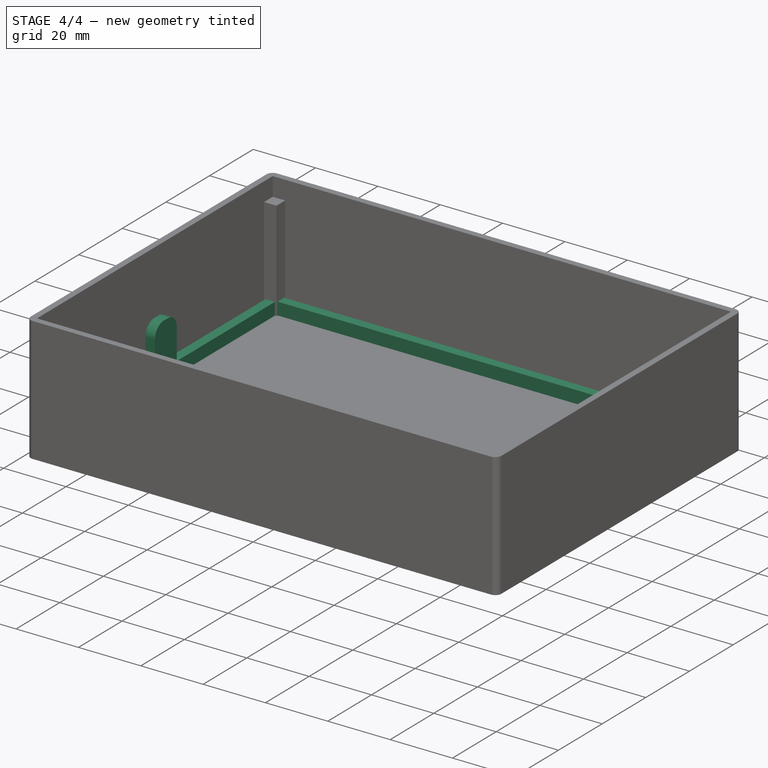
[diagram: stage 4 of 4 — iso view after this stage's code; geometry added in this stage tinted green]
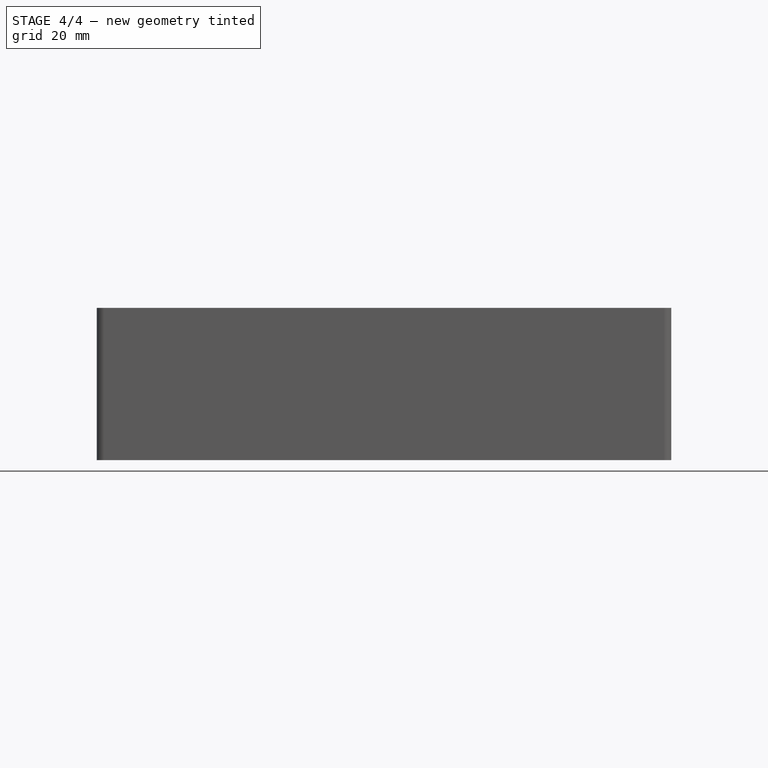
[diagram: stage 4 of 4 — front view after this stage's code; geometry added in this stage tinted green]
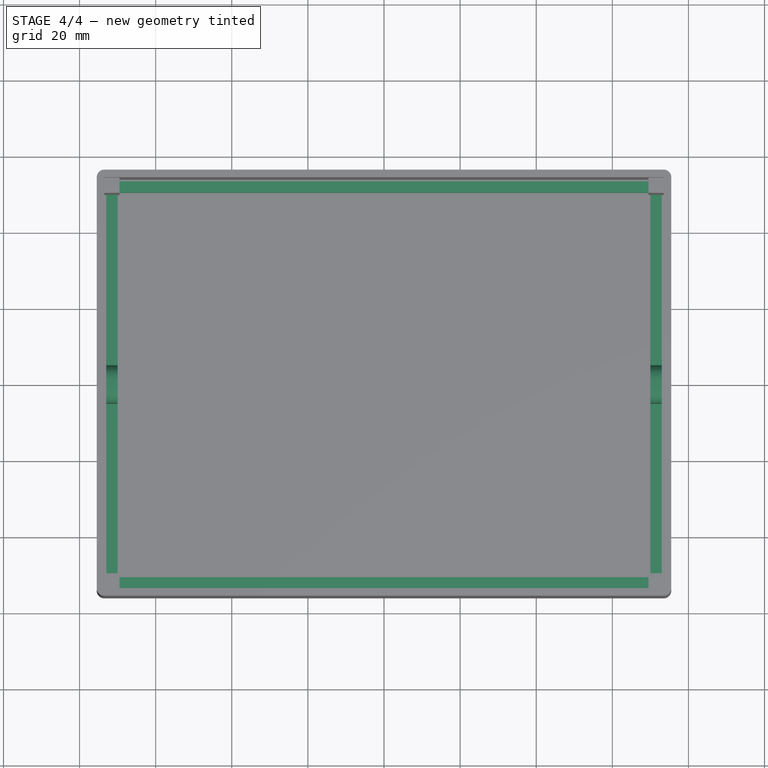
[diagram: stage 4 of 4 — top view after this stage's code; geometry added in this stage tinted green]
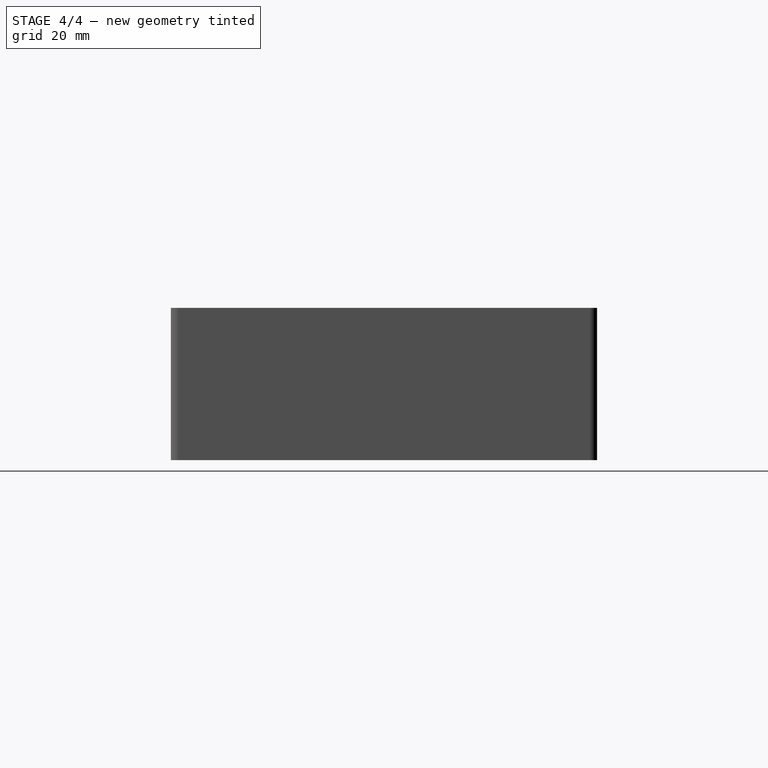
[diagram: stage 4 of 4 — right view after this stage's code; geometry added in this stage tinted green]
FEATURE [Sketcher::SketchObject] Sketch003
  ExternalGeometry = -> [LinearPattern]
  FullyConstrained = true
  MapMode = 5
  Support = -> [XY_Plane]
  sketch-geometry (8):
    g0: LineSegment StartX=-73 StartY=53.5 StartZ=0 EndX=73 EndY=53.5 EndZ=0
    g1: LineSegment StartX=73 StartY=53.5 StartZ=0 EndX=73 EndY=-53.5 EndZ=0
    g2: LineSegment StartX=73 StartY=-53.5 StartZ=0 EndX=-73 EndY=-53.5 EndZ=0
    g3: LineSegment StartX=-73 StartY=-53.5 StartZ=0 EndX=-73 EndY=53.5 EndZ=0
    g4: LineSegment StartX=-70 StartY=50.5 StartZ=0 EndX=70 EndY=50.5 EndZ=0
    g5: LineSegment StartX=70 StartY=50.5 StartZ=0 EndX=70 EndY=-50.5 EndZ=0
    g6: LineSegment StartX=70 StartY=-50.5 StartZ=0 EndX=-70 EndY=-50.5 EndZ=0
    g7: LineSegment StartX=-70 StartY=-50.5 StartZ=0 EndX=-70 EndY=50.5 EndZ=0
  constraints (22):
    c: Coincident(g0,g1)
    c: Coincident(g1,g2)
    c: Coincident(g2,g3)
    c: Coincident(g3,g0)
    c: Horizontal(g0)
    c: Horizontal(g2)
    c: Vertical(g1)
    c: Vertical(g3)
    c: DistanceX(g-4,g1) = 3
    c: DistanceY(g1,g-4) = 3
    c: DistanceX(g0,g-3) = 3
    c: DistanceY(g-3,g0) = 3
    c: Coincident(g4,g5)
    c: Coincident(g5,g6)
    c: Coincident(g6,g7)
    c: Coincident(g7,g4)
    c: Horizontal(g4)
    c: Horizontal(g6)
    c: Vertical(g5)
    c: Vertical(g7)
    c: Coincident(g4,g-3)
    c: Coincident(g5,g-4)
FEATURE [PartDesign::Pad] Pad003
  BaseFeature = -> LinearPattern
  Direction = (0,0,1)
  Length = 6
  Length2 = 10
  Profile = -> Sketch003
  ReferenceAxis = -> Sketch003 [N_Axis]
  Type = 0
FEATURE [Sketcher::SketchObject] Sketch004
  ExternalGeometry = -> [Pad003]
  FullyConstrained = true
  MapMode = 5
  Support = -> [XY_Plane]
  sketch-geometry (4):
    g0: LineSegment StartX=-73 StartY=5 StartZ=0 EndX=-70 EndY=5 EndZ=0
    g1: LineSegment StartX=-70 StartY=5 StartZ=0 EndX=-70 EndY=-5 EndZ=0
    g2: LineSegment StartX=-70 StartY=-5 StartZ=0 EndX=-73 EndY=-5 EndZ=0
    g3: LineSegment StartX=-73 StartY=-5 StartZ=0 EndX=-73 EndY=5 EndZ=0
  constraints (12):
    c: Coincident(g0,g1)
    c: Coincident(g1,g2)
    c: Coincident(g2,g3)
    c: Coincident(g3,g0)
    c: Horizontal(g0)
    c: Horizontal(g2)
    c: Vertical(g1)
    c: Vertical(g3)
    c: PointOnObject(g0,g-4)
    c: PointOnObject(g1,g-3)
    c: DistanceY(g-1,g0) = 5
    c: DistanceY(g2,g-1) = 5
FEATURE [PartDesign::Pad] Pad004
  BaseFeature = -> Pad003
  Direction = (0,0,1)
  Length = 20
  Length2 = 10
  Profile = -> Sketch004
  ReferenceAxis = -> Sketch004 [N_Axis]
  Type = 0
FEATURE [PartDesign::Fillet] Fillet
  Base = -> Pad004 [Edge2423,Edge2420]
  BaseFeature = -> Pad004
  Radius = 4
  SupportTransform = false
  UseAllEdges = false
FEATURE [PartDesign::Mirrored] Mirrored
  BaseFeature = -> Fillet
  MirrorPlane = -> Sketch004 [V_Axis]
  Originals = -> [Pad004,Fillet]
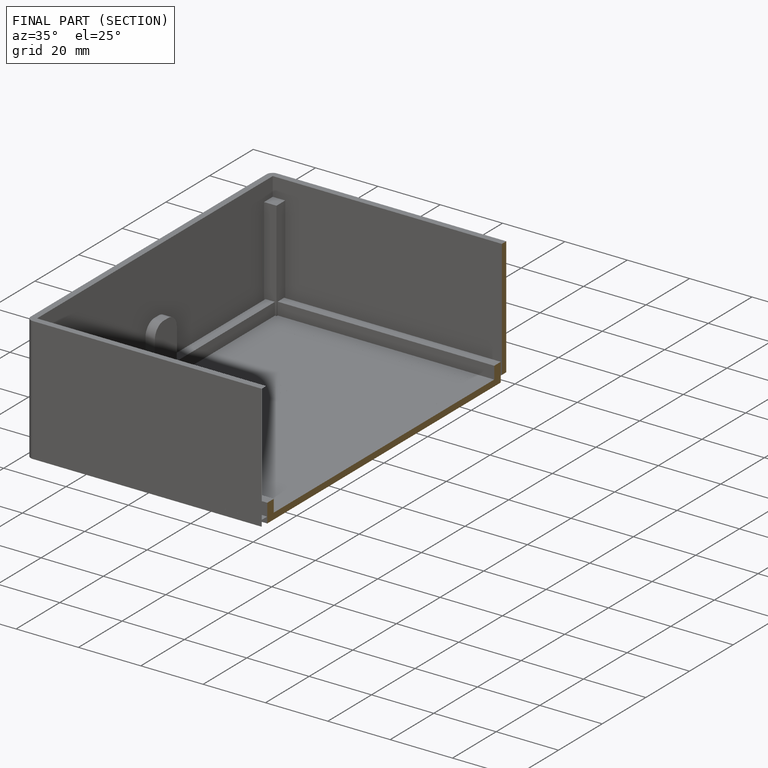
[diagram: finished part — half-section view (interior)]
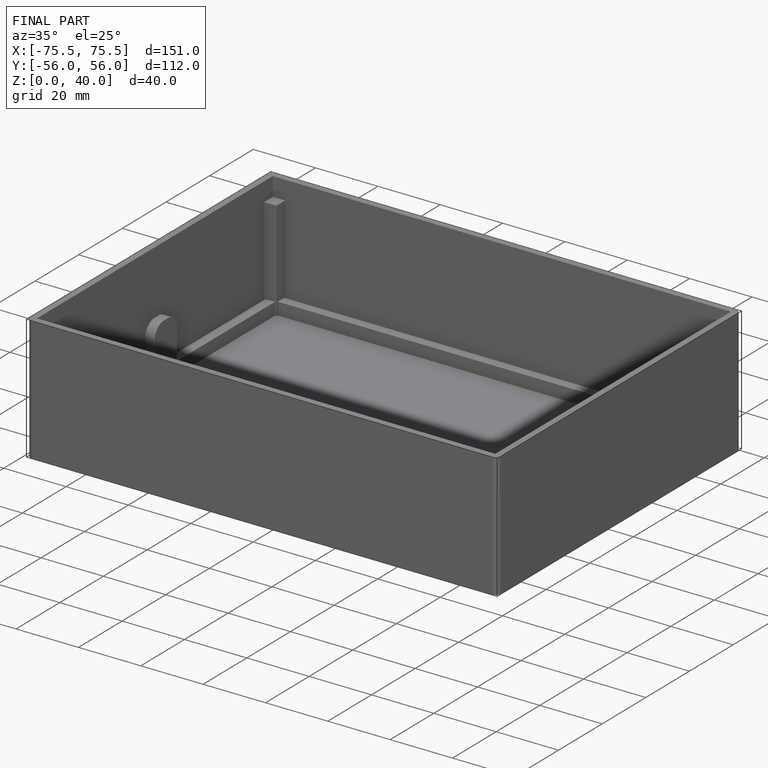
[diagram: finished part — iso view with bounding-box wireframe]
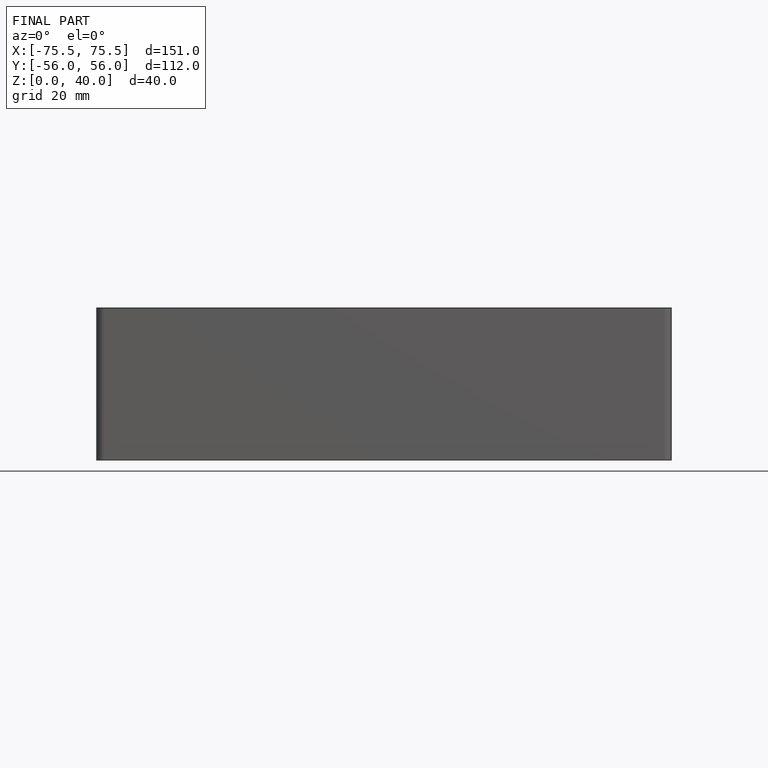
[diagram: finished part — front view with bounding-box wireframe]
